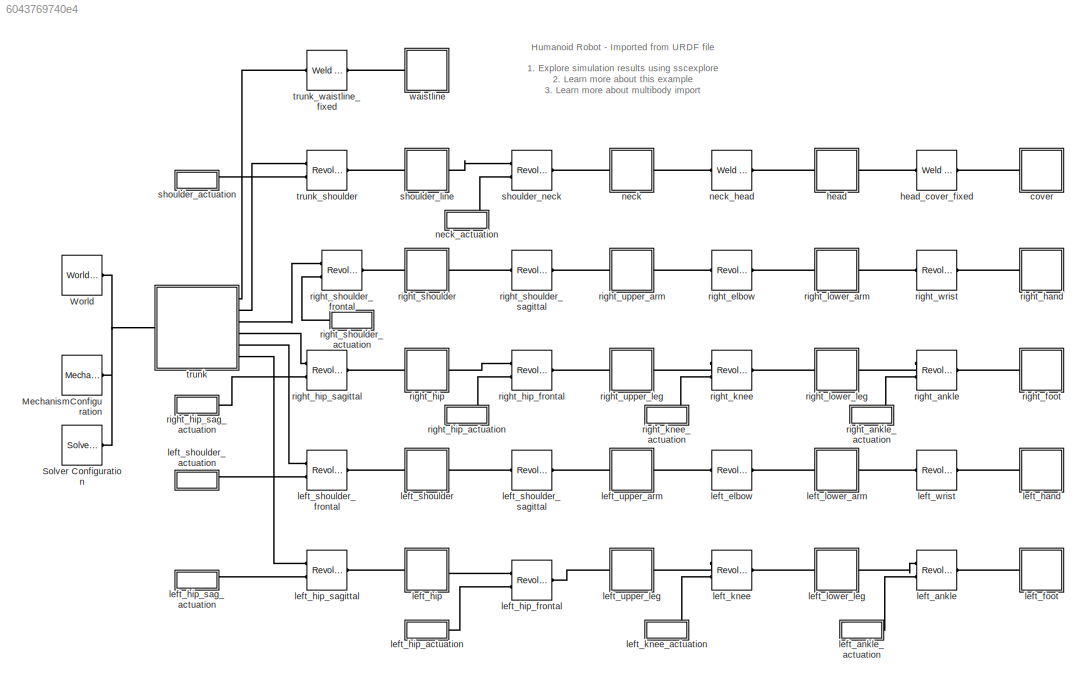
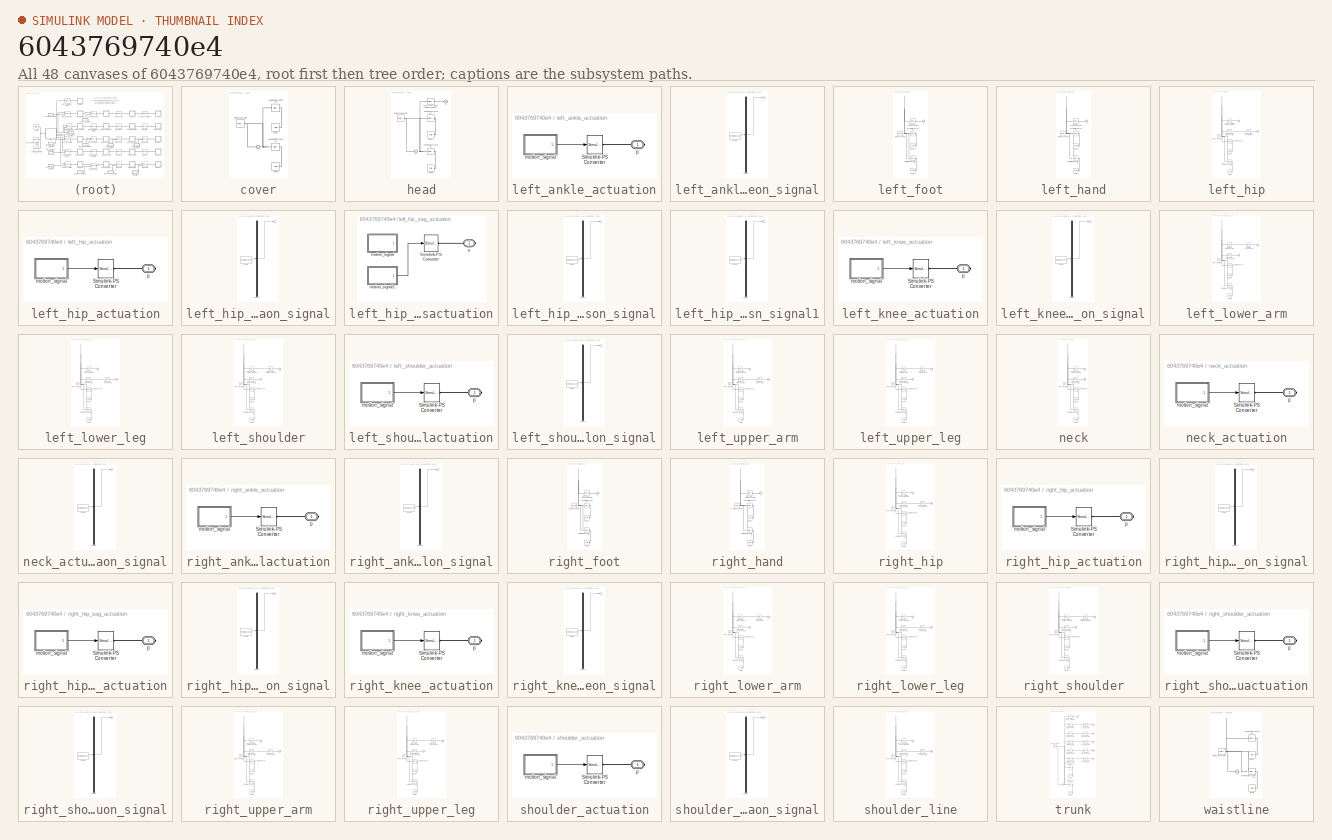
[diagram: thumbnail index - all 48 canvases of the model, root first then tree order]
MODEL slx_6043769740e4
KIND model
CONFIG AbsTol = auto
CONFIG EnableMultiTasking = off
CONFIG FixedStep = auto
CONFIG MaxStep = auto
CONFIG MinStep = auto
CONFIG RelTol = 1e-3
CONFIG SampleTimeConstraint = Unconstrained
CONFIG Solver = VariableStepAuto
CONFIG SolverName = VariableStepAuto
CONFIG StartTime = 0.0
CONFIG StopTime = 15
BLOCK [Reference] MechanismConfiguration  REF=sm_lib/Utilities/Mechanism
Configuration
  Ports = [0, 0, 0, 0, 0, 0, 1]
  SourceBlock = sm_lib/Utilities/Mechanism\nConfiguration
  SourceProductBaseCode = MS
  SourceProductName = Simscape Multibody
  SourceType = Mechanism\nConfiguration
BLOCK [Reference] Solver Configuration  REF=nesl_utility/Solver
Configuration
  Ports = [0, 0, 0, 0, 0, 0, 1]
  SourceBlock = nesl_utility/Solver\nConfiguration
  SourceProductBaseCode = SS
  SourceProductName = Simscape
  SourceType = Solver\nConfiguration
BLOCK [Reference] World  REF=sm_lib/Frames and
Transforms/World Frame
  Ports = [0, 0, 0, 0, 0, 0, 1]
  SourceBlock = sm_lib/Frames and\nTransforms/World Frame
  SourceProductBaseCode = MS
  SourceProductName = Simscape Multibody
  SourceType = World Frame
BLOCK [SubSystem] cover
  Ports = [0, 0, 0, 0, 0, 1]
  RequestExecContextInheritance = off
  Variant = off
BLOCK [PMIOPort] cover/F
  Port = 1
  Side = Left
BLOCK [Reference] cover/Inertia  REF=sm_lib/Body Elements/Solid
  Ports = [0, 0, 0, 0, 0, 0, 1]
  SourceBlock = sm_lib/Body Elements/Solid
  SourceProductBaseCode = MS
  SourceProductName = Simscape Multibody
  SourceType = Solid
BLOCK [Reference] cover/InertiaOriginTransform  REF=sm_lib/Frames and
Transforms/Rigid
Transform
  Ports = [0, 0, 0, 0, 0, 1, 1]
  SourceBlock = sm_lib/Frames and\nTransforms/Rigid\nTransform
  SourceProductBaseCode = MS
  SourceProductName = Simscape Multibody
  SourceType = Rigid\nTransform
BLOCK [Reference] cover/ReferenceFrame  REF=sm_lib/Frames and
Transforms/Reference
Frame
  Ports = [0, 0, 0, 0, 0, 0, 1]
  SourceBlock = sm_lib/Frames and\nTransforms/Reference\nFrame
  SourceProductBaseCode = MS
  SourceProductName = Simscape Multibody
  SourceType = Reference\nFrame
BLOCK [Reference] cover/Visual  REF=sm_lib/Body Elements/Solid
  Ports = [0, 0, 0, 0, 0, 0, 1]
  SourceBlock = sm_lib/Body Elements/Solid
  SourceProductBaseCode = MS
  SourceProductName = Simscape Multibody
  SourceType = Solid
BLOCK [Reference] cover/VisualOriginTransform  REF=sm_lib/Frames and
Transforms/Rigid
Transform
  Ports = [0, 0, 0, 0, 0, 1, 1]
  SourceBlock = sm_lib/Frames and\nTransforms/Rigid\nTransform
  SourceProductBaseCode = MS
  SourceProductName = Simscape Multibody
  SourceType = Rigid\nTransform
BLOCK [SubSystem] head
  Ports = [0, 0, 0, 0, 0, 1, 1]
  RequestExecContextInheritance = off
  Variant = off
BLOCK [PMIOPort] head/F
  Port = 1
  Side = Left
BLOCK [PMIOPort] head/F1
  Port = 2
  Side = Right
BLOCK [Reference] head/Inertia  REF=sm_lib/Body Elements/Solid
  Ports = [0, 0, 0, 0, 0, 0, 1]
  SourceBlock = sm_lib/Body Elements/Solid
  SourceProductBaseCode = MS
  SourceProductName = Simscape Multibody
  SourceType = Solid
BLOCK [Reference] head/InertiaOriginTransform  REF=sm_lib/Frames and
Transforms/Rigid
Transform
  Ports = [0, 0, 0, 0, 0, 1, 1]
  SourceBlock = sm_lib/Frames and\nTransforms/Rigid\nTransform
  SourceProductBaseCode = MS
  SourceProductName = Simscape Multibody
  SourceType = Rigid\nTransform
BLOCK [Reference] head/ReferenceFrame  REF=sm_lib/Frames and
Transforms/Reference
Frame
  Ports = [0, 0, 0, 0, 0, 0, 1]
  SourceBlock = sm_lib/Frames and\nTransforms/Reference\nFrame
  SourceProductBaseCode = MS
  SourceProductName = Simscape Multibody
  SourceType = Reference\nFrame
BLOCK [Reference] head/Visual  REF=sm_lib/Body Elements/Solid
  Ports = [0, 0, 0, 0, 0, 0, 1]
  SourceBlock = sm_lib/Body Elements/Solid
  SourceProductBaseCode = MS
  SourceProductName = Simscape Multibody
  SourceType = Solid
BLOCK [Reference] head/VisualOriginTransform  REF=sm_lib/Frames and
Transforms/Rigid
Transform
  Ports = [0, 0, 0, 0, 0, 1, 1]
  SourceBlock = sm_lib/Frames and\nTransforms/Rigid\nTransform
  SourceProductBaseCode = MS
  SourceProductName = Simscape Multibody
  SourceType = Rigid\nTransform
BLOCK [Reference] head/head_cover_fixed_OriginTransform  REF=sm_lib/Frames and
Transforms/Rigid
Transform
  Ports = [0, 0, 0, 0, 0, 1, 1]
  SourceBlock = sm_lib/Frames and\nTransforms/Rigid\nTransform
  SourceProductBaseCode = MS
  SourceProductName = Simscape Multibody
  SourceType = Rigid\nTransform
BLOCK [Reference] head_cover_fixed  REF=sm_lib/Joints/Weld Joint
  Ports = [0, 0, 0, 0, 0, 1, 1]
  SourceBlock = sm_lib/Joints/Weld Joint
  SourceProductBaseCode = MS
  SourceProductName = Simscape Multibody
  SourceType = Weld Joint
BLOCK [Reference] left_ankle  REF=sm_lib/Joints/Revolute Joint
  Ports = [0, 0, 0, 0, 0, 2, 1]
  SourceBlock = sm_lib/Joints/Revolute Joint
  SourceProductBaseCode = MS
  SourceProductName = Simscape Multibody
  SourceType = Revolute Joint
BLOCK [SubSystem] left_ankle_actuation
  Ports = [0, 0, 0, 0, 0, 0, 1]
  RequestExecContextInheritance = off
  Variant = off
BLOCK [Reference] left_ankle_actuation/Simulink-PS Converter  REF=nesl_utility/Simulink-PS
Converter
  Ports = [1, 0, 0, 0, 0, 0, 1]
  SourceBlock = nesl_utility/Simulink-PS\nConverter
  SourceProductBaseCode = SS
  SourceProductName = Simscape
  SourceType = Simulink-PS\nConverter
BLOCK [SubSystem] left_ankle_actuation/motion_signal
  ClipboardFcn = sigbuilder_block('clipboard');
  CloseFcn = sigbuilder_block('close');
  ContinueFcn = sigbuilder_block('continue');
  CopyFcn = sigbuilder_block('copy');
  DeleteFcn = sigbuilder_block('delete');
  LoadFcn = sigbuilder_block('load');
  MaskHideContents = on
  ModelCloseFcn = sigbuilder_block('modelClose');
  NameChangeFcn = sigbuilder_block('namechange');
  OpenFcn = sigbuilder_block('open',[437.6 199.2 550.4 400 ]);
  PauseFcn = sigbuilder_block('pause');
  Ports = [0, 1]
  PreSaveFcn = sigbuilder_block('preSave');
  RequestExecContextInheritance = off
  StartFcn = sigbuilder_block('start');
  StopFcn = sigbuilder_block('stop');
  Tag = STV Subsys
  Variant = off
BLOCK [Demux] left_ankle_actuation/motion_signal/Demux
  Outputs = 1
  Ports = [1, 1]
  Tag = STV Demux
BLOCK [Outport] left_ankle_actuation/motion_signal/FA
  IconDisplay = Port number
  Tag = STV Outport
BLOCK [FromWorkspace] left_ankle_actuation/motion_signal/FromWs
  SampleTime = 0
  Tag = STV FromWs
  VariableName = tuvar
  ZeroCross = on
BLOCK [PMIOPort] left_ankle_actuation/p
  Port = 1
  Side = Right
BLOCK [Reference] left_elbow  REF=sm_lib/Joints/Revolute Joint
  Ports = [0, 0, 0, 0, 0, 1, 1]
  SourceBlock = sm_lib/Joints/Revolute Joint
  SourceProductBaseCode = MS
  SourceProductName = Simscape Multibody
  SourceType = Revolute Joint
BLOCK [SubSystem] left_foot
  Ports = [0, 0, 0, 0, 0, 1]
  RequestExecContextInheritance = off
  Variant = off
BLOCK [PMIOPort] left_foot/F
  Port = 1
  Side = Left
BLOCK [Reference] left_foot/Inertia  REF=sm_lib/Body Elements/Solid
  Ports = [0, 0, 0, 0, 0, 0, 1]
  SourceBlock = sm_lib/Body Elements/Solid
  SourceProductBaseCode = MS
  SourceProductName = Simscape Multibody
  SourceType = Solid
BLOCK [Reference] left_foot/InertiaOriginTransform  REF=sm_lib/Frames and
Transforms/Rigid
Transform
  Ports = [0, 0, 0, 0, 0, 1, 1]
  SourceBlock = sm_lib/Frames and\nTransforms/Rigid\nTransform
  SourceProductBaseCode = MS
  SourceProductName = Simscape Multibody
  SourceType = Rigid\nTransform
BLOCK [Reference] left_foot/ReferenceFrame  REF=sm_lib/Frames and
Transforms/Reference
Frame
  Ports = [0, 0, 0, 0, 0, 0, 1]
  SourceBlock = sm_lib/Frames and\nTransforms/Reference\nFrame
  SourceProductBaseCode = MS
  SourceProductName = Simscape Multibody
  SourceType = Reference\nFrame
BLOCK [Reference] left_foot/Visual  REF=sm_lib/Body Elements/Solid
  Ports = [0, 0, 0, 0, 0, 0, 1]
  SourceBlock = sm_lib/Body Elements/Solid
  SourceProductBaseCode = MS
  SourceProductName = Simscape Multibody
  SourceType = Solid
BLOCK [Reference] left_foot/VisualOriginTransform  REF=sm_lib/Frames and
Transforms/Rigid
Transform
  Ports = [0, 0, 0, 0, 0, 1, 1]
  SourceBlock = sm_lib/Frames and\nTransforms/Rigid\nTransform
  SourceProductBaseCode = MS
  SourceProductName = Simscape Multibody
  SourceType = Rigid\nTransform
BLOCK [Reference] left_foot/left_ankle_AxisInvTransform  REF=sm_lib/Frames and
Transforms/Rigid
Transform
  Ports = [0, 0, 0, 0, 0, 1, 1]
  SourceBlock = sm_lib/Frames and\nTransforms/Rigid\nTransform
  SourceProductBaseCode = MS
  SourceProductName = Simscape Multibody
  SourceType = Rigid\nTransform
BLOCK [SubSystem] left_hand
  Ports = [0, 0, 0, 0, 0, 1]
  RequestExecContextInheritance = off
  Variant = off
BLOCK [PMIOPort] left_hand/F
  Port = 1
  Side = Left
BLOCK [Reference] left_hand/Inertia  REF=sm_lib/Body Elements/Solid
  Ports = [0, 0, 0, 0, 0, 0, 1]
  SourceBlock = sm_lib/Body Elements/Solid
  SourceProductBaseCode = MS
  SourceProductName = Simscape Multibody
  SourceType = Solid
BLOCK [Reference] left_hand/InertiaOriginTransform  REF=sm_lib/Frames and
Transforms/Rigid
Transform
  Ports = [0, 0, 0, 0, 0, 1, 1]
  SourceBlock = sm_lib/Frames and\nTransforms/Rigid\nTransform
  SourceProductBaseCode = MS
  SourceProductName = Simscape Multibody
  SourceType = Rigid\nTransform
BLOCK [Reference] left_hand/ReferenceFrame  REF=sm_lib/Frames and
Transforms/Reference
Frame
  Ports = [0, 0, 0, 0, 0, 0, 1]
  SourceBlock = sm_lib/Frames and\nTransforms/Reference\nFrame
  SourceProductBaseCode = MS
  SourceProductName = Simscape Multibody
  SourceType = Reference\nFrame
BLOCK [Reference] left_hand/Visual  REF=sm_lib/Body Elements/Solid
  Ports = [0, 0, 0, 0, 0, 0, 1]
  SourceBlock = sm_lib/Body Elements/Solid
  SourceProductBaseCode = MS
  SourceProductName = Simscape Multibody
  SourceType = Solid
BLOCK [Reference] left_hand/VisualOriginTransform  REF=sm_lib/Frames and
Transforms/Rigid
Transform
  Ports = [0, 0, 0, 0, 0, 1, 1]
  SourceBlock = sm_lib/Frames and\nTransforms/Rigid\nTransform
  SourceProductBaseCode = MS
  SourceProductName = Simscape Multibody
  SourceType = Rigid\nTransform
BLOCK [Reference] left_hand/left_wrist_AxisInvTransform  REF=sm_lib/Frames and
Transforms/Rigid
Transform
  Ports = [0, 0, 0, 0, 0, 1, 1]
  SourceBlock = sm_lib/Frames and\nTransforms/Rigid\nTransform
  SourceProductBaseCode = MS
  SourceProductName = Simscape Multibody
  SourceType = Rigid\nTransform
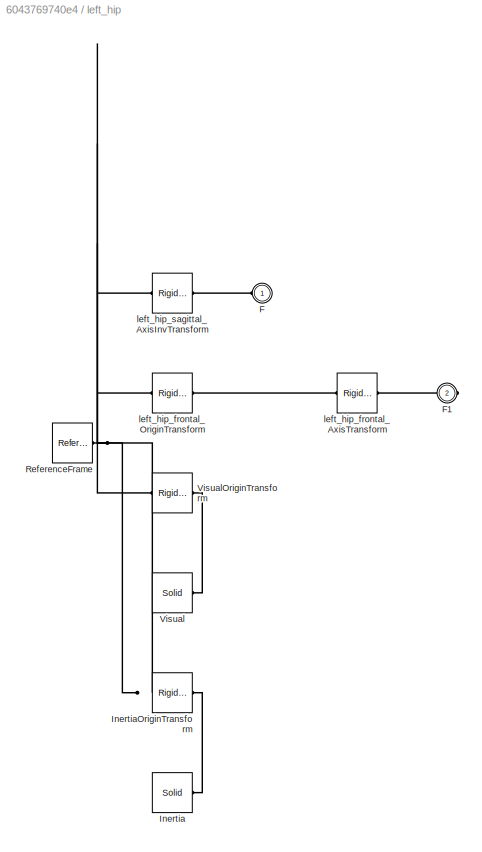
BLOCK [SubSystem] left_hip
  Ports = [0, 0, 0, 0, 0, 1, 1]
  RequestExecContextInheritance = off
  Variant = off
BLOCK [PMIOPort] left_hip/F
  Port = 1
  Side = Left
BLOCK [PMIOPort] left_hip/F1
  Port = 2
  Side = Right
BLOCK [Reference] left_hip/Inertia  REF=sm_lib/Body Elements/Solid
  Ports = [0, 0, 0, 0, 0, 0, 1]
  SourceBlock = sm_lib/Body Elements/Solid
  SourceProductBaseCode = MS
  SourceProductName = Simscape Multibody
  SourceType = Solid
BLOCK [Reference] left_hip/InertiaOriginTransform  REF=sm_lib/Frames and
Transforms/Rigid
Transform
  Ports = [0, 0, 0, 0, 0, 1, 1]
  SourceBlock = sm_lib/Frames and\nTransforms/Rigid\nTransform
  SourceProductBaseCode = MS
  SourceProductName = Simscape Multibody
  SourceType = Rigid\nTransform
BLOCK [Reference] left_hip/ReferenceFrame  REF=sm_lib/Frames and
Transforms/Reference
Frame
  Ports = [0, 0, 0, 0, 0, 0, 1]
  SourceBlock = sm_lib/Frames and\nTransforms/Reference\nFrame
  SourceProductBaseCode = MS
  SourceProductName = Simscape Multibody
  SourceType = Reference\nFrame
BLOCK [Reference] left_hip/Visual  REF=sm_lib/Body Elements/Solid
  Ports = [0, 0, 0, 0, 0, 0, 1]
  SourceBlock = sm_lib/Body Elements/Solid
  SourceProductBaseCode = MS
  SourceProductName = Simscape Multibody
  SourceType = Solid
BLOCK [Reference] left_hip/VisualOriginTransform  REF=sm_lib/Frames and
Transforms/Rigid
Transform
  Ports = [0, 0, 0, 0, 0, 1, 1]
  SourceBlock = sm_lib/Frames and\nTransforms/Rigid\nTransform
  SourceProductBaseCode = MS
  SourceProductName = Simscape Multibody
  SourceType = Rigid\nTransform
BLOCK [Reference] left_hip/left_hip_frontal_AxisTransform  REF=sm_lib/Frames and
Transforms/Rigid
Transform
  Ports = [0, 0, 0, 0, 0, 1, 1]
  SourceBlock = sm_lib/Frames and\nTransforms/Rigid\nTransform
  SourceProductBaseCode = MS
  SourceProductName = Simscape Multibody
  SourceType = Rigid\nTransform
BLOCK [Reference] left_hip/left_hip_frontal_OriginTransform  REF=sm_lib/Frames and
Transforms/Rigid
Transform
  Ports = [0, 0, 0, 0, 0, 1, 1]
  SourceBlock = sm_lib/Frames and\nTransforms/Rigid\nTransform
  SourceProductBaseCode = MS
  SourceProductName = Simscape Multibody
  SourceType = Rigid\nTransform
BLOCK [Reference] left_hip/left_hip_sagittal_AxisInvTransform  REF=sm_lib/Frames and
Transforms/Rigid
Transform
  Ports = [0, 0, 0, 0, 0, 1, 1]
  SourceBlock = sm_lib/Frames and\nTransforms/Rigid\nTransform
  SourceProductBaseCode = MS
  SourceProductName = Simscape Multibody
  SourceType = Rigid\nTransform
BLOCK [SubSystem] left_hip_actuation
  Ports = [0, 0, 0, 0, 0, 0, 1]
  RequestExecContextInheritance = off
  Variant = off
BLOCK [Reference] left_hip_actuation/Simulink-PS Converter  REF=nesl_utility/Simulink-PS
Converter
  Ports = [1, 0, 0, 0, 0, 0, 1]
  SourceBlock = nesl_utility/Simulink-PS\nConverter
  SourceProductBaseCode = SS
  SourceProductName = Simscape
  SourceType = Simulink-PS\nConverter
BLOCK [SubSystem] left_hip_actuation/motion_signal
  ClipboardFcn = sigbuilder_block('clipboard');
  CloseFcn = sigbuilder_block('close');
  ContinueFcn = sigbuilder_block('continue');
  CopyFcn = sigbuilder_block('copy');
  DeleteFcn = sigbuilder_block('delete');
  LoadFcn = sigbuilder_block('load');
  MaskHideContents = on
  ModelCloseFcn = sigbuilder_block('modelClose');
  NameChangeFcn = sigbuilder_block('namechange');
  OpenFcn = sigbuilder_block('open',[429.75 150 565.5 444.75 ]);
  PauseFcn = sigbuilder_block('pause');
  Ports = [0, 1]
  PreSaveFcn = sigbuilder_block('preSave');
  RequestExecContextInheritance = off
  StartFcn = sigbuilder_block('start');
  StopFcn = sigbuilder_block('stop');
  Tag = STV Subsys
  Variant = off
BLOCK [Demux] left_hip_actuation/motion_signal/Demux
  Outputs = 1
  Ports = [1, 1]
  Tag = STV Demux
BLOCK [Outport] left_hip_actuation/motion_signal/FA
  IconDisplay = Port number
  Tag = STV Outport
BLOCK [FromWorkspace] left_hip_actuation/motion_signal/FromWs
  SampleTime = 0
  Tag = STV FromWs
  VariableName = tuvar
  ZeroCross = on
BLOCK [PMIOPort] left_hip_actuation/p
  Port = 1
  Side = Right
BLOCK [Reference] left_hip_frontal  REF=sm_lib/Joints/Revolute Joint
  Ports = [0, 0, 0, 0, 0, 2, 1]
  SourceBlock = sm_lib/Joints/Revolute Joint
  SourceProductBaseCode = MS
  SourceProductName = Simscape Multibody
  SourceType = Revolute Joint
BLOCK [SubSystem] left_hip_sag_actuation
  Ports = [0, 0, 0, 0, 0, 0, 1]
  RequestExecContextInheritance = off
  Variant = off
BLOCK [Reference] left_hip_sag_actuation/Simulink-PS Converter  REF=nesl_utility/Simulink-PS
Converter
  Ports = [1, 0, 0, 0, 0, 0, 1]
  SourceBlock = nesl_utility/Simulink-PS\nConverter
  SourceProductBaseCode = SS
  SourceProductName = Simscape
  SourceType = Simulink-PS\nConverter
BLOCK [SubSystem] left_hip_sag_actuation/motion_signal
  ClipboardFcn = sigbuilder_block('clipboard');
  CloseFcn = sigbuilder_block('close');
  ContinueFcn = sigbuilder_block('continue');
  CopyFcn = sigbuilder_block('copy');
  DeleteFcn = sigbuilder_block('delete');
  LoadFcn = sigbuilder_block('load');
  MaskHideContents = on
  ModelCloseFcn = sigbuilder_block('modelClose');
  NameChangeFcn = sigbuilder_block('namechange');
  OpenFcn = sigbuilder_block('open',[429.75 129 565.5 444.75 ]);
  PauseFcn = sigbuilder_block('pause');
  Ports = [0, 1]
  PreSaveFcn = sigbuilder_block('preSave');
  RequestExecContextInheritance = off
  StartFcn = sigbuilder_block('start');
  StopFcn = sigbuilder_block('stop');
  Tag = STV Subsys
  Variant = off
BLOCK [Demux] left_hip_sag_actuation/motion_signal/Demux
  Outputs = 1
  Ports = [1, 1]
  Tag = STV Demux
BLOCK [Outport] left_hip_sag_actuation/motion_signal/FA
  IconDisplay = Port number
  Tag = STV Outport
BLOCK [FromWorkspace] left_hip_sag_actuation/motion_signal/FromWs
  SampleTime = 0
  Tag = STV FromWs
  VariableName = tuvar
  ZeroCross = on
BLOCK [SubSystem] left_hip_sag_actuation/motion_signal1
  ClipboardFcn = sigbuilder_block('clipboard');
  CloseFcn = sigbuilder_block('close');
  ContinueFcn = sigbuilder_block('continue');
  CopyFcn = sigbuilder_block('copy');
  DeleteFcn = sigbuilder_block('delete');
  LoadFcn = sigbuilder_block('load',[429.75 151.5 558 422.25 ]);
  MaskHideContents = on
  ModelCloseFcn = sigbuilder_block('modelClose');
  NameChangeFcn = sigbuilder_block('namechange');
  OpenFcn = sigbuilder_block('open',[429.75 150 565.5 444.75 ]);
  PauseFcn = sigbuilder_block('pause');
  Ports = [0, 1]
  PreSaveFcn = sigbuilder_block('preSave');
  RequestExecContextInheritance = off
  StartFcn = sigbuilder_block('start');
  StopFcn = sigbuilder_block('stop');
  Tag = STV Subsys
  Variant = off
BLOCK [Demux] left_hip_sag_actuation/motion_signal1/Demux
  Outputs = 1
  Ports = [1, 1]
  Tag = STV Demux
BLOCK [Outport] left_hip_sag_actuation/motion_signal1/FA
  IconDisplay = Port number
  Tag = STV Outport
BLOCK [FromWorkspace] left_hip_sag_actuation/motion_signal1/FromWs
  SampleTime = 0
  Tag = STV FromWs
  VariableName = tuvar
  ZeroCross = on
BLOCK [PMIOPort] left_hip_sag_actuation/p
  Port = 1
  Side = Right
BLOCK [Reference] left_hip_sagittal  REF=sm_lib/Joints/Revolute Joint
  Ports = [0, 0, 0, 0, 0, 2, 1]
  SourceBlock = sm_lib/Joints/Revolute Joint
  SourceProductBaseCode = MS
  SourceProductName = Simscape Multibody
  SourceType = Revolute Joint
BLOCK [Reference] left_knee  REF=sm_lib/Joints/Revolute Joint
  Ports = [0, 0, 0, 0, 0, 2, 1]
  SourceBlock = sm_lib/Joints/Revolute Joint
  SourceProductBaseCode = MS
  SourceProductName = Simscape Multibody
  SourceType = Revolute Joint
BLOCK [SubSystem] left_knee_actuation
  Ports = [0, 0, 0, 0, 0, 0, 1]
  RequestExecContextInheritance = off
  Variant = off
BLOCK [Reference] left_knee_actuation/Simulink-PS Converter  REF=nesl_utility/Simulink-PS
Converter
  Ports = [1, 0, 0, 0, 0, 0, 1]
  SourceBlock = nesl_utility/Simulink-PS\nConverter
  SourceProductBaseCode = SS
  SourceProductName = Simscape
  SourceType = Simulink-PS\nConverter
BLOCK [SubSystem] left_knee_actuation/motion_signal
  ClipboardFcn = sigbuilder_block('clipboard');
  CloseFcn = sigbuilder_block('close');
  ContinueFcn = sigbuilder_block('continue');
  CopyFcn = sigbuilder_block('copy');
  DeleteFcn = sigbuilder_block('delete');
  LoadFcn = sigbuilder_block('load');
  MaskHideContents = on
  ModelCloseFcn = sigbuilder_block('modelClose');
  NameChangeFcn = sigbuilder_block('namechange');
  OpenFcn = sigbuilder_block('open',[437.6 199.2 550.4 400 ]);
  PauseFcn = sigbuilder_block('pause');
  Ports = [0, 1]
  PreSaveFcn = sigbuilder_block('preSave');
  RequestExecContextInheritance = off
  StartFcn = sigbuilder_block('start');
  StopFcn = sigbuilder_block('stop');
  Tag = STV Subsys
  Variant = off
BLOCK [Demux] left_knee_actuation/motion_signal/Demux
  Outputs = 1
  Ports = [1, 1]
  Tag = STV Demux
BLOCK [Outport] left_knee_actuation/motion_signal/FA
  IconDisplay = Port number
  Tag = STV Outport
BLOCK [FromWorkspace] left_knee_actuation/motion_signal/FromWs
  SampleTime = 0
  Tag = STV FromWs
  VariableName = tuvar
  ZeroCross = on
BLOCK [PMIOPort] left_knee_actuation/p
  Port = 1
  Side = Right
BLOCK [SubSystem] left_lower_arm
  Ports = [0, 0, 0, 0, 0, 1, 1]
  RequestExecContextInheritance = off
  Variant = off
BLOCK [PMIOPort] left_lower_arm/F
  Port = 1
  Side = Left
BLOCK [PMIOPort] left_lower_arm/F1
  Port = 2
  Side = Right
BLOCK [Reference] left_lower_arm/Inertia  REF=sm_lib/Body Elements/Solid
  Ports = [0, 0, 0, 0, 0, 0, 1]
  SourceBlock = sm_lib/Body Elements/Solid
  SourceProductBaseCode = MS
  SourceProductName = Simscape Multibody
  SourceType = Solid
BLOCK [Reference] left_lower_arm/InertiaOriginTransform  REF=sm_lib/Frames and
Transforms/Rigid
Transform
  Ports = [0, 0, 0, 0, 0, 1, 1]
  SourceBlock = sm_lib/Frames and\nTransforms/Rigid\nTransform
  SourceProductBaseCode = MS
  SourceProductName = Simscape Multibody
  SourceType = Rigid\nTransform
BLOCK [Reference] left_lower_arm/ReferenceFrame  REF=sm_lib/Frames and
Transforms/Reference
Frame
  Ports = [0, 0, 0, 0, 0, 0, 1]
  SourceBlock = sm_lib/Frames and\nTransforms/Reference\nFrame
  SourceProductBaseCode = MS
  SourceProductName = Simscape Multibody
  SourceType = Reference\nFrame
BLOCK [Reference] left_lower_arm/Visual  REF=sm_lib/Body Elements/Solid
  Ports = [0, 0, 0, 0, 0, 0, 1]
  SourceBlock = sm_lib/Body Elements/Solid
  SourceProductBaseCode = MS
  SourceProductName = Simscape Multibody
  SourceType = Solid
BLOCK [Reference] left_lower_arm/VisualOriginTransform  REF=sm_lib/Frames and
Transforms/Rigid
Transform
  Ports = [0, 0, 0, 0, 0, 1, 1]
  SourceBlock = sm_lib/Frames and\nTransforms/Rigid\nTransform
  SourceProductBaseCode = MS
  SourceProductName = Simscape Multibody
  SourceType = Rigid\nTransform
BLOCK [Reference] left_lower_arm/left_elbow_AxisInvTransform  REF=sm_lib/Frames and
Transforms/Rigid
Transform
  Ports = [0, 0, 0, 0, 0, 1, 1]
  SourceBlock = sm_lib/Frames and\nTransforms/Rigid\nTransform
  SourceProductBaseCode = MS
  SourceProductName = Simscape Multibody
  SourceType = Rigid\nTransform
BLOCK [Reference] left_lower_arm/left_wrist_AxisTransform  REF=sm_lib/Frames and
Transforms/Rigid
Transform
  Ports = [0, 0, 0, 0, 0, 1, 1]
  SourceBlock = sm_lib/Frames and\nTransforms/Rigid\nTransform
  SourceProductBaseCode = MS
  SourceProductName = Simscape Multibody
  SourceType = Rigid\nTransform
BLOCK [Reference] left_lower_arm/left_wrist_OriginTransform  REF=sm_lib/Frames and
Transforms/Rigid
Transform
  Ports = [0, 0, 0, 0, 0, 1, 1]
  SourceBlock = sm_lib/Frames and\nTransforms/Rigid\nTransform
  SourceProductBaseCode = MS
  SourceProductName = Simscape Multibody
  SourceType = Rigid\nTransform
BLOCK [SubSystem] left_lower_leg
  Ports = [0, 0, 0, 0, 0, 1, 1]
  RequestExecContextInheritance = off
  Variant = off
BLOCK [PMIOPort] left_lower_leg/F
  Port = 1
  Side = Left
BLOCK [PMIOPort] left_lower_leg/F1
  Port = 2
  Side = Right
BLOCK [Reference] left_lower_leg/Inertia  REF=sm_lib/Body Elements/Solid
  Ports = [0, 0, 0, 0, 0, 0, 1]
  SourceBlock = sm_lib/Body Elements/Solid
  SourceProductBaseCode = MS
  SourceProductName = Simscape Multibody
  SourceType = Solid
BLOCK [Reference] left_lower_leg/InertiaOriginTransform  REF=sm_lib/Frames and
Transforms/Rigid
Transform
  Ports = [0, 0, 0, 0, 0, 1, 1]
  SourceBlock = sm_lib/Frames and\nTransforms/Rigid\nTransform
  SourceProductBaseCode = MS
  SourceProductName = Simscape Multibody
  SourceType = Rigid\nTransform
BLOCK [Reference] left_lower_leg/ReferenceFrame  REF=sm_lib/Frames and
Transforms/Reference
Frame
  Ports = [0, 0, 0, 0, 0, 0, 1]
  SourceBlock = sm_lib/Frames and\nTransforms/Reference\nFrame
  SourceProductBaseCode = MS
  SourceProductName = Simscape Multibody
  SourceType = Reference\nFrame
BLOCK [Reference] left_lower_leg/Visual  REF=sm_lib/Body Elements/Solid
  Ports = [0, 0, 0, 0, 0, 0, 1]
  SourceBlock = sm_lib/Body Elements/Solid
  SourceProductBaseCode = MS
  SourceProductName = Simscape Multibody
  SourceType = Solid
BLOCK [Reference] left_lower_leg/VisualOriginTransform  REF=sm_lib/Frames and
Transforms/Rigid
Transform
  Ports = [0, 0, 0, 0, 0, 1, 1]
  SourceBlock = sm_lib/Frames and\nTransforms/Rigid\nTransform
  SourceProductBaseCode = MS
  SourceProductName = Simscape Multibody
  SourceType = Rigid\nTransform
BLOCK [Reference] left_lower_leg/left_ankle_AxisTransform  REF=sm_lib/Frames and
Transforms/Rigid
Transform
  Ports = [0, 0, 0, 0, 0, 1, 1]
  SourceBlock = sm_lib/Frames and\nTransforms/Rigid\nTransform
  SourceProductBaseCode = MS
  SourceProductName = Simscape Multibody
  SourceType = Rigid\nTransform
BLOCK [Reference] left_lower_leg/left_ankle_OriginTransform  REF=sm_lib/Frames and
Transforms/Rigid
Transform
  Ports = [0, 0, 0, 0, 0, 1, 1]
  SourceBlock = sm_lib/Frames and\nTransforms/Rigid\nTransform
  SourceProductBaseCode = MS
  SourceProductName = Simscape Multibody
  SourceType = Rigid\nTransform
BLOCK [Reference] left_lower_leg/left_knee_AxisInvTransform  REF=sm_lib/Frames and
Transforms/Rigid
Transform
  Ports = [0, 0, 0, 0, 0, 1, 1]
  SourceBlock = sm_lib/Frames and\nTransforms/Rigid\nTransform
  SourceProductBaseCode = MS
  SourceProductName = Simscape Multibody
  SourceType = Rigid\nTransform
BLOCK [SubSystem] left_shoulder
  Ports = [0, 0, 0, 0, 0, 1, 1]
  RequestExecContextInheritance = off
  Variant = off
BLOCK [PMIOPort] left_shoulder/F
  Port = 1
  Side = Left
BLOCK [PMIOPort] left_shoulder/F1
  Port = 2
  Side = Right
BLOCK [Reference] left_shoulder/Inertia  REF=sm_lib/Body Elements/Solid
  Ports = [0, 0, 0, 0, 0, 0, 1]
  SourceBlock = sm_lib/Body Elements/Solid
  SourceProductBaseCode = MS
  SourceProductName = Simscape Multibody
  SourceType = Solid
BLOCK [Reference] left_shoulder/InertiaOriginTransform  REF=sm_lib/Frames and
Transforms/Rigid
Transform
  Ports = [0, 0, 0, 0, 0, 1, 1]
  SourceBlock = sm_lib/Frames and\nTransforms/Rigid\nTransform
  SourceProductBaseCode = MS
  SourceProductName = Simscape Multibody
  SourceType = Rigid\nTransform
BLOCK [Reference] left_shoulder/ReferenceFrame  REF=sm_lib/Frames and
Transforms/Reference
Frame
  Ports = [0, 0, 0, 0, 0, 0, 1]
  SourceBlock = sm_lib/Frames and\nTransforms/Reference\nFrame
  SourceProductBaseCode = MS
  SourceProductName = Simscape Multibody
  SourceType = Reference\nFrame
BLOCK [Reference] left_shoulder/Visual  REF=sm_lib/Body Elements/Solid
  Ports = [0, 0, 0, 0, 0, 0, 1]
  SourceBlock = sm_lib/Body Elements/Solid
  SourceProductBaseCode = MS
  SourceProductName = Simscape Multibody
  SourceType = Solid
BLOCK [Reference] left_shoulder/VisualOriginTransform  REF=sm_lib/Frames and
Transforms/Rigid
Transform
  Ports = [0, 0, 0, 0, 0, 1, 1]
  SourceBlock = sm_lib/Frames and\nTransforms/Rigid\nTransform
  SourceProductBaseCode = MS
  SourceProductName = Simscape Multibody
  SourceType = Rigid\nTransform
BLOCK [Reference] left_shoulder/left_shoulder_frontal_AxisInvTransform  REF=sm_lib/Frames and
Transforms/Rigid
Transform
  Ports = [0, 0, 0, 0, 0, 1, 1]
  SourceBlock = sm_lib/Frames and\nTransforms/Rigid\nTransform
  SourceProductBaseCode = MS
  SourceProductName = Simscape Multibody
  SourceType = Rigid\nTransform
BLOCK [Reference] left_shoulder/left_shoulder_sagittal_AxisTransform  REF=sm_lib/Frames and
Transforms/Rigid
Transform
  Ports = [0, 0, 0, 0, 0, 1, 1]
  SourceBlock = sm_lib/Frames and\nTransforms/Rigid\nTransform
  SourceProductBaseCode = MS
  SourceProductName = Simscape Multibody
  SourceType = Rigid\nTransform
BLOCK [Reference] left_shoulder/left_shoulder_sagittal_OriginTransform  REF=sm_lib/Frames and
Transforms/Rigid
Transform
  Ports = [0, 0, 0, 0, 0, 1, 1]
  SourceBlock = sm_lib/Frames and\nTransforms/Rigid\nTransform
  SourceProductBaseCode = MS
  SourceProductName = Simscape Multibody
  SourceType = Rigid\nTransform
BLOCK [SubSystem] left_shoulder_actuation
  Ports = [0, 0, 0, 0, 0, 0, 1]
  RequestExecContextInheritance = off
  Variant = off
BLOCK [Reference] left_shoulder_actuation/Simulink-PS Converter  REF=nesl_utility/Simulink-PS
Converter
  Ports = [1, 0, 0, 0, 0, 0, 1]
  SourceBlock = nesl_utility/Simulink-PS\nConverter
  SourceProductBaseCode = SS
  SourceProductName = Simscape
  SourceType = Simulink-PS\nConverter
BLOCK [SubSystem] left_shoulder_actuation/motion_signal
  ClipboardFcn = sigbuilder_block('clipboard');
  CloseFcn = sigbuilder_block('close');
  ContinueFcn = sigbuilder_block('continue');
  CopyFcn = sigbuilder_block('copy');
  DeleteFcn = sigbuilder_block('delete');
  LoadFcn = sigbuilder_block('load');
  MaskHideContents = on
  ModelCloseFcn = sigbuilder_block('modelClose');
  NameChangeFcn = sigbuilder_block('namechange');
  OpenFcn = sigbuilder_block('open',[437.6 199.2 550.4 400 ]);
  PauseFcn = sigbuilder_block('pause');
  Ports = [0, 1]
  PreSaveFcn = sigbuilder_block('preSave');
  RequestExecContextInheritance = off
  StartFcn = sigbuilder_block('start');
  StopFcn = sigbuilder_block('stop');
  Tag = STV Subsys
  Variant = off
BLOCK [Demux] left_shoulder_actuation/motion_signal/Demux
  Outputs = 1
  Ports = [1, 1]
  Tag = STV Demux
BLOCK [Outport] left_shoulder_actuation/motion_signal/FA
  IconDisplay = Port number
  Tag = STV Outport
BLOCK [FromWorkspace] left_shoulder_actuation/motion_signal/FromWs
  SampleTime = 0
  Tag = STV FromWs
  VariableName = tuvar
  ZeroCross = on
BLOCK [PMIOPort] left_shoulder_actuation/p
  Port = 1
  Side = Right
BLOCK [Reference] left_shoulder_frontal  REF=sm_lib/Joints/Revolute Joint
  Ports = [0, 0, 0, 0, 0, 2, 1]
  SourceBlock = sm_lib/Joints/Revolute Joint
  SourceProductBaseCode = MS
  SourceProductName = Simscape Multibody
  SourceType = Revolute Joint
BLOCK [Reference] left_shoulder_sagittal  REF=sm_lib/Joints/Revolute Joint
  Ports = [0, 0, 0, 0, 0, 1, 1]
  SourceBlock = sm_lib/Joints/Revolute Joint
  SourceProductBaseCode = MS
  SourceProductName = Simscape Multibody
  SourceType = Revolute Joint
BLOCK [SubSystem] left_upper_arm
  Ports = [0, 0, 0, 0, 0, 1, 1]
  RequestExecContextInheritance = off
  Variant = off
BLOCK [PMIOPort] left_upper_arm/F
  Port = 1
  Side = Left
BLOCK [PMIOPort] left_upper_arm/F1
  Port = 2
  Side = Right
BLOCK [Reference] left_upper_arm/Inertia  REF=sm_lib/Body Elements/Solid
  Ports = [0, 0, 0, 0, 0, 0, 1]
  SourceBlock = sm_lib/Body Elements/Solid
  SourceProductBaseCode = MS
  SourceProductName = Simscape Multibody
  SourceType = Solid
BLOCK [Reference] left_upper_arm/InertiaOriginTransform  REF=sm_lib/Frames and
Transforms/Rigid
Transform
  Ports = [0, 0, 0, 0, 0, 1, 1]
  SourceBlock = sm_lib/Frames and\nTransforms/Rigid\nTransform
  SourceProductBaseCode = MS
  SourceProductName = Simscape Multibody
  SourceType = Rigid\nTransform
BLOCK [Reference] left_upper_arm/ReferenceFrame  REF=sm_lib/Frames and
Transforms/Reference
Frame
  Ports = [0, 0, 0, 0, 0, 0, 1]
  SourceBlock = sm_lib/Frames and\nTransforms/Reference\nFrame
  SourceProductBaseCode = MS
  SourceProductName = Simscape Multibody
  SourceType = Reference\nFrame
BLOCK [Reference] left_upper_arm/Visual  REF=sm_lib/Body Elements/Solid
  Ports = [0, 0, 0, 0, 0, 0, 1]
  SourceBlock = sm_lib/Body Elements/Solid
  SourceProductBaseCode = MS
  SourceProductName = Simscape Multibody
  SourceType = Solid
BLOCK [Reference] left_upper_arm/VisualOriginTransform  REF=sm_lib/Frames and
Transforms/Rigid
Transform
  Ports = [0, 0, 0, 0, 0, 1, 1]
  SourceBlock = sm_lib/Frames and\nTransforms/Rigid\nTransform
  SourceProductBaseCode = MS
  SourceProductName = Simscape Multibody
  SourceType = Rigid\nTransform
BLOCK [Reference] left_upper_arm/left_elbow_AxisTransform  REF=sm_lib/Frames and
Transforms/Rigid
Transform
  Ports = [0, 0, 0, 0, 0, 1, 1]
  SourceBlock = sm_lib/Frames and\nTransforms/Rigid\nTransform
  SourceProductBaseCode = MS
  SourceProductName = Simscape Multibody
  SourceType = Rigid\nTransform
BLOCK [Reference] left_upper_arm/left_elbow_OriginTransform  REF=sm_lib/Frames and
Transforms/Rigid
Transform
  Ports = [0, 0, 0, 0, 0, 1, 1]
  SourceBlock = sm_lib/Frames and\nTransforms/Rigid\nTransform
  SourceProductBaseCode = MS
  SourceProductName = Simscape Multibody
  SourceType = Rigid\nTransform
BLOCK [Reference] left_upper_arm/left_shoulder_sagittal_AxisInvTransform  REF=sm_lib/Frames and
Transforms/Rigid
Transform
  Ports = [0, 0, 0, 0, 0, 1, 1]
  SourceBlock = sm_lib/Frames and\nTransforms/Rigid\nTransform
  SourceProductBaseCode = MS
  SourceProductName = Simscape Multibody
  SourceType = Rigid\nTransform
BLOCK [SubSystem] left_upper_leg
  Ports = [0, 0, 0, 0, 0, 1, 1]
  RequestExecContextInheritance = off
  Variant = off
BLOCK [PMIOPort] left_upper_leg/F
  Port = 1
  Side = Left
BLOCK [PMIOPort] left_upper_leg/F1
  Port = 2
  Side = Right
BLOCK [Reference] left_upper_leg/Inertia  REF=sm_lib/Body Elements/Solid
  Ports = [0, 0, 0, 0, 0, 0, 1]
  SourceBlock = sm_lib/Body Elements/Solid
  SourceProductBaseCode = MS
  SourceProductName = Simscape Multibody
  SourceType = Solid
BLOCK [Reference] left_upper_leg/InertiaOriginTransform  REF=sm_lib/Frames and
Transforms/Rigid
Transform
  Ports = [0, 0, 0, 0, 0, 1, 1]
  SourceBlock = sm_lib/Frames and\nTransforms/Rigid\nTransform
  SourceProductBaseCode = MS
  SourceProductName = Simscape Multibody
  SourceType = Rigid\nTransform
BLOCK [Reference] left_upper_leg/ReferenceFrame  REF=sm_lib/Frames and
Transforms/Reference
Frame
  Ports = [0, 0, 0, 0, 0, 0, 1]
  SourceBlock = sm_lib/Frames and\nTransforms/Reference\nFrame
  SourceProductBaseCode = MS
  SourceProductName = Simscape Multibody
  SourceType = Reference\nFrame
BLOCK [Reference] left_upper_leg/Visual  REF=sm_lib/Body Elements/Solid
  Ports = [0, 0, 0, 0, 0, 0, 1]
  SourceBlock = sm_lib/Body Elements/Solid
  SourceProductBaseCode = MS
  SourceProductName = Simscape Multibody
  SourceType = Solid
BLOCK [Reference] left_upper_leg/VisualOriginTransform  REF=sm_lib/Frames and
Transforms/Rigid
Transform
  Ports = [0, 0, 0, 0, 0, 1, 1]
  SourceBlock = sm_lib/Frames and\nTransforms/Rigid\nTransform
  SourceProductBaseCode = MS
  SourceProductName = Simscape Multibody
  SourceType = Rigid\nTransform
BLOCK [Reference] left_upper_leg/left_hip_frontal_AxisInvTransform  REF=sm_lib/Frames and
Transforms/Rigid
Transform
  Ports = [0, 0, 0, 0, 0, 1, 1]
  SourceBlock = sm_lib/Frames and\nTransforms/Rigid\nTransform
  SourceProductBaseCode = MS
  SourceProductName = Simscape Multibody
  SourceType = Rigid\nTransform
BLOCK [Reference] left_upper_leg/left_knee_AxisTransform  REF=sm_lib/Frames and
Transforms/Rigid
Transform
  Ports = [0, 0, 0, 0, 0, 1, 1]
  SourceBlock = sm_lib/Frames and\nTransforms/Rigid\nTransform
  SourceProductBaseCode = MS
  SourceProductName = Simscape Multibody
  SourceType = Rigid\nTransform
BLOCK [Reference] left_upper_leg/left_knee_OriginTransform  REF=sm_lib/Frames and
Transforms/Rigid
Transform
  Ports = [0, 0, 0, 0, 0, 1, 1]
  SourceBlock = sm_lib/Frames and\nTransforms/Rigid\nTransform
  SourceProductBaseCode = MS
  SourceProductName = Simscape Multibody
  SourceType = Rigid\nTransform
BLOCK [Reference] left_wrist  REF=sm_lib/Joints/Revolute Joint
  Ports = [0, 0, 0, 0, 0, 1, 1]
  SourceBlock = sm_lib/Joints/Revolute Joint
  SourceProductBaseCode = MS
  SourceProductName = Simscape Multibody
  SourceType = Revolute Joint
BLOCK [SubSystem] neck
  Ports = [0, 0, 0, 0, 0, 1, 1]
  RequestExecContextInheritance = off
  Variant = off
BLOCK [PMIOPort] neck/F
  Port = 1
  Side = Left
BLOCK [PMIOPort] neck/F1
  Port = 2
  Side = Right
BLOCK [Reference] neck/Inertia  REF=sm_lib/Body Elements/Solid
  Ports = [0, 0, 0, 0, 0, 0, 1]
  SourceBlock = sm_lib/Body Elements/Solid
  SourceProductBaseCode = MS
  SourceProductName = Simscape Multibody
  SourceType = Solid
BLOCK [Reference] neck/InertiaOriginTransform  REF=sm_lib/Frames and
Transforms/Rigid
Transform
  Ports = [0, 0, 0, 0, 0, 1, 1]
  SourceBlock = sm_lib/Frames and\nTransforms/Rigid\nTransform
  SourceProductBaseCode = MS
  SourceProductName = Simscape Multibody
  SourceType = Rigid\nTransform
BLOCK [Reference] neck/ReferenceFrame  REF=sm_lib/Frames and
Transforms/Reference
Frame
  Ports = [0, 0, 0, 0, 0, 0, 1]
  SourceBlock = sm_lib/Frames and\nTransforms/Reference\nFrame
  SourceProductBaseCode = MS
  SourceProductName = Simscape Multibody
  SourceType = Reference\nFrame
BLOCK [Reference] neck/Visual  REF=sm_lib/Body Elements/Solid
  Ports = [0, 0, 0, 0, 0, 0, 1]
  SourceBlock = sm_lib/Body Elements/Solid
  SourceProductBaseCode = MS
  SourceProductName = Simscape Multibody
  SourceType = Solid
BLOCK [Reference] neck/VisualOriginTransform  REF=sm_lib/Frames and
Transforms/Rigid
Transform
  Ports = [0, 0, 0, 0, 0, 1, 1]
  SourceBlock = sm_lib/Frames and\nTransforms/Rigid\nTransform
  SourceProductBaseCode = MS
  SourceProductName = Simscape Multibody
  SourceType = Rigid\nTransform
BLOCK [Reference] neck/neck_head_OriginTransform  REF=sm_lib/Frames and
Transforms/Rigid
Transform
  Ports = [0, 0, 0, 0, 0, 1, 1]
  SourceBlock = sm_lib/Frames and\nTransforms/Rigid\nTransform
  SourceProductBaseCode = MS
  SourceProductName = Simscape Multibody
  SourceType = Rigid\nTransform
BLOCK [Reference] neck/shoulder_neck_AxisInvTransform  REF=sm_lib/Frames and
Transforms/Rigid
Transform
  Ports = [0, 0, 0, 0, 0, 1, 1]
  SourceBlock = sm_lib/Frames and\nTransforms/Rigid\nTransform
  SourceProductBaseCode = MS
  SourceProductName = Simscape Multibody
  SourceType = Rigid\nTransform
BLOCK [SubSystem] neck_actuation
  Ports = [0, 0, 0, 0, 0, 0, 1]
  RequestExecContextInheritance = off
  Variant = off
BLOCK [Reference] neck_actuation/Simulink-PS Converter  REF=nesl_utility/Simulink-PS
Converter
  Ports = [1, 0, 0, 0, 0, 0, 1]
  SourceBlock = nesl_utility/Simulink-PS\nConverter
  SourceProductBaseCode = SS
  SourceProductName = Simscape
  SourceType = Simulink-PS\nConverter
BLOCK [SubSystem] neck_actuation/motion_signal
  ClipboardFcn = sigbuilder_block('clipboard');
  CloseFcn = sigbuilder_block('close');
  ContinueFcn = sigbuilder_block('continue');
  CopyFcn = sigbuilder_block('copy');
  DeleteFcn = sigbuilder_block('delete');
  LoadFcn = sigbuilder_block('load');
  MaskHideContents = on
  ModelCloseFcn = sigbuilder_block('modelClose');
  NameChangeFcn = sigbuilder_block('namechange');
  OpenFcn = sigbuilder_block('open',[437.6 199.2 550.4 400 ]);
  PauseFcn = sigbuilder_block('pause');
  Ports = [0, 1]
  PreSaveFcn = sigbuilder_block('preSave');
  RequestExecContextInheritance = off
  StartFcn = sigbuilder_block('start');
  StopFcn = sigbuilder_block('stop');
  Tag = STV Subsys
  Variant = off
BLOCK [Demux] neck_actuation/motion_signal/Demux
  Outputs = 1
  Ports = [1, 1]
  Tag = STV Demux
BLOCK [Outport] neck_actuation/motion_signal/FA
  IconDisplay = Port number
  Tag = STV Outport
BLOCK [FromWorkspace] neck_actuation/motion_signal/FromWs
  SampleTime = 0
  Tag = STV FromWs
  VariableName = tuvar
  ZeroCross = on
BLOCK [PMIOPort] neck_actuation/p
  Port = 1
  Side = Right
BLOCK [Reference] neck_head  REF=sm_lib/Joints/Weld Joint
  Ports = [0, 0, 0, 0, 0, 1, 1]
  SourceBlock = sm_lib/Joints/Weld Joint
  SourceProductBaseCode = MS
  SourceProductName = Simscape Multibody
  SourceType = Weld Joint
BLOCK [Reference] right_ankle  REF=sm_lib/Joints/Revolute Joint
  Ports = [0, 0, 0, 0, 0, 2, 1]
  SourceBlock = sm_lib/Joints/Revolute Joint
  SourceProductBaseCode = MS
  SourceProductName = Simscape Multibody
  SourceType = Revolute Joint
BLOCK [SubSystem] right_ankle_actuation
  Ports = [0, 0, 0, 0, 0, 0, 1]
  RequestExecContextInheritance = off
  Variant = off
BLOCK [Reference] right_ankle_actuation/Simulink-PS Converter  REF=nesl_utility/Simulink-PS
Converter
  Ports = [1, 0, 0, 0, 0, 0, 1]
  SourceBlock = nesl_utility/Simulink-PS\nConverter
  SourceProductBaseCode = SS
  SourceProductName = Simscape
  SourceType = Simulink-PS\nConverter
BLOCK [SubSystem] right_ankle_actuation/motion_signal
  ClipboardFcn = sigbuilder_block('clipboard');
  CloseFcn = sigbuilder_block('close');
  ContinueFcn = sigbuilder_block('continue');
  CopyFcn = sigbuilder_block('copy');
  DeleteFcn = sigbuilder_block('delete');
  LoadFcn = sigbuilder_block('load');
  MaskHideContents = on
  ModelCloseFcn = sigbuilder_block('modelClose');
  NameChangeFcn = sigbuilder_block('namechange');
  OpenFcn = sigbuilder_block('open',[437.6 199.2 550.4 400 ]);
  PauseFcn = sigbuilder_block('pause');
  Ports = [0, 1]
  PreSaveFcn = sigbuilder_block('preSave');
  RequestExecContextInheritance = off
  StartFcn = sigbuilder_block('start');
  StopFcn = sigbuilder_block('stop');
  Tag = STV Subsys
  Variant = off
BLOCK [Demux] right_ankle_actuation/motion_signal/Demux
  Outputs = 1
  Ports = [1, 1]
  Tag = STV Demux
BLOCK [Outport] right_ankle_actuation/motion_signal/FA
  IconDisplay = Port number
  Tag = STV Outport
BLOCK [FromWorkspace] right_ankle_actuation/motion_signal/FromWs
  SampleTime = 0
  Tag = STV FromWs
  VariableName = tuvar
  ZeroCross = on
BLOCK [PMIOPort] right_ankle_actuation/p
  Port = 1
  Side = Right
BLOCK [Reference] right_elbow  REF=sm_lib/Joints/Revolute Joint
  Ports = [0, 0, 0, 0, 0, 1, 1]
  SourceBlock = sm_lib/Joints/Revolute Joint
  SourceProductBaseCode = MS
  SourceProductName = Simscape Multibody
  SourceType = Revolute Joint
BLOCK [SubSystem] right_foot
  Ports = [0, 0, 0, 0, 0, 1]
  RequestExecContextInheritance = off
  Variant = off
BLOCK [PMIOPort] right_foot/F
  Port = 1
  Side = Left
BLOCK [Reference] right_foot/Inertia  REF=sm_lib/Body Elements/Solid
  Ports = [0, 0, 0, 0, 0, 0, 1]
  SourceBlock = sm_lib/Body Elements/Solid
  SourceProductBaseCode = MS
  SourceProductName = Simscape Multibody
  SourceType = Solid
BLOCK [Reference] right_foot/InertiaOriginTransform  REF=sm_lib/Frames and
Transforms/Rigid
Transform
  Ports = [0, 0, 0, 0, 0, 1, 1]
  SourceBlock = sm_lib/Frames and\nTransforms/Rigid\nTransform
  SourceProductBaseCode = MS
  SourceProductName = Simscape Multibody
  SourceType = Rigid\nTransform
BLOCK [Reference] right_foot/ReferenceFrame  REF=sm_lib/Frames and
Transforms/Reference
Frame
  Ports = [0, 0, 0, 0, 0, 0, 1]
  SourceBlock = sm_lib/Frames and\nTransforms/Reference\nFrame
  SourceProductBaseCode = MS
  SourceProductName = Simscape Multibody
  SourceType = Reference\nFrame
BLOCK [Reference] right_foot/Visual  REF=sm_lib/Body Elements/Solid
  Ports = [0, 0, 0, 0, 0, 0, 1]
  SourceBlock = sm_lib/Body Elements/Solid
  SourceProductBaseCode = MS
  SourceProductName = Simscape Multibody
  SourceType = Solid
BLOCK [Reference] right_foot/VisualOriginTransform  REF=sm_lib/Frames and
Transforms/Rigid
Transform
  Ports = [0, 0, 0, 0, 0, 1, 1]
  SourceBlock = sm_lib/Frames and\nTransforms/Rigid\nTransform
  SourceProductBaseCode = MS
  SourceProductName = Simscape Multibody
  SourceType = Rigid\nTransform
BLOCK [Reference] right_foot/right_ankle_AxisInvTransform  REF=sm_lib/Frames and
Transforms/Rigid
Transform
  Ports = [0, 0, 0, 0, 0, 1, 1]
  SourceBlock = sm_lib/Frames and\nTransforms/Rigid\nTransform
  SourceProductBaseCode = MS
  SourceProductName = Simscape Multibody
  SourceType = Rigid\nTransform
BLOCK [SubSystem] right_hand
  Ports = [0, 0, 0, 0, 0, 1]
  RequestExecContextInheritance = off
  Variant = off
BLOCK [PMIOPort] right_hand/F
  Port = 1
  Side = Left
BLOCK [Reference] right_hand/Inertia  REF=sm_lib/Body Elements/Solid
  Ports = [0, 0, 0, 0, 0, 0, 1]
  SourceBlock = sm_lib/Body Elements/Solid
  SourceProductBaseCode = MS
  SourceProductName = Simscape Multibody
  SourceType = Solid
BLOCK [Reference] right_hand/InertiaOriginTransform  REF=sm_lib/Frames and
Transforms/Rigid
Transform
  Ports = [0, 0, 0, 0, 0, 1, 1]
  SourceBlock = sm_lib/Frames and\nTransforms/Rigid\nTransform
  SourceProductBaseCode = MS
  SourceProductName = Simscape Multibody
  SourceType = Rigid\nTransform
BLOCK [Reference] right_hand/ReferenceFrame  REF=sm_lib/Frames and
Transforms/Reference
Frame
  Ports = [0, 0, 0, 0, 0, 0, 1]
  SourceBlock = sm_lib/Frames and\nTransforms/Reference\nFrame
  SourceProductBaseCode = MS
  SourceProductName = Simscape Multibody
  SourceType = Reference\nFrame
BLOCK [Reference] right_hand/Visual  REF=sm_lib/Body Elements/Solid
  Ports = [0, 0, 0, 0, 0, 0, 1]
  SourceBlock = sm_lib/Body Elements/Solid
  SourceProductBaseCode = MS
  SourceProductName = Simscape Multibody
  SourceType = Solid
BLOCK [Reference] right_hand/VisualOriginTransform  REF=sm_lib/Frames and
Transforms/Rigid
Transform
  Ports = [0, 0, 0, 0, 0, 1, 1]
  SourceBlock = sm_lib/Frames and\nTransforms/Rigid\nTransform
  SourceProductBaseCode = MS
  SourceProductName = Simscape Multibody
  SourceType = Rigid\nTransform
BLOCK [Reference] right_hand/right_wrist_AxisInvTransform  REF=sm_lib/Frames and
Transforms/Rigid
Transform
  Ports = [0, 0, 0, 0, 0, 1, 1]
  SourceBlock = sm_lib/Frames and\nTransforms/Rigid\nTransform
  SourceProductBaseCode = MS
  SourceProductName = Simscape Multibody
  SourceType = Rigid\nTransform
BLOCK [SubSystem] right_hip
  Ports = [0, 0, 0, 0, 0, 1, 1]
  RequestExecContextInheritance = off
  Variant = off
BLOCK [PMIOPort] right_hip/F
  Port = 1
  Side = Left
BLOCK [PMIOPort] right_hip/F1
  Port = 2
  Side = Right
BLOCK [Reference] right_hip/Inertia  REF=sm_lib/Body Elements/Solid
  Ports = [0, 0, 0, 0, 0, 0, 1]
  SourceBlock = sm_lib/Body Elements/Solid
  SourceProductBaseCode = MS
  SourceProductName = Simscape Multibody
  SourceType = Solid
BLOCK [Reference] right_hip/InertiaOriginTransform  REF=sm_lib/Frames and
Transforms/Rigid
Transform
  Ports = [0, 0, 0, 0, 0, 1, 1]
  SourceBlock = sm_lib/Frames and\nTransforms/Rigid\nTransform
  SourceProductBaseCode = MS
  SourceProductName = Simscape Multibody
  SourceType = Rigid\nTransform
BLOCK [Reference] right_hip/ReferenceFrame  REF=sm_lib/Frames and
Transforms/Reference
Frame
  Ports = [0, 0, 0, 0, 0, 0, 1]
  SourceBlock = sm_lib/Frames and\nTransforms/Reference\nFrame
  SourceProductBaseCode = MS
  SourceProductName = Simscape Multibody
  SourceType = Reference\nFrame
BLOCK [Reference] right_hip/Visual  REF=sm_lib/Body Elements/Solid
  Ports = [0, 0, 0, 0, 0, 0, 1]
  SourceBlock = sm_lib/Body Elements/Solid
  SourceProductBaseCode = MS
  SourceProductName = Simscape Multibody
  SourceType = Solid
BLOCK [Reference] right_hip/VisualOriginTransform  REF=sm_lib/Frames and
Transforms/Rigid
Transform
  Ports = [0, 0, 0, 0, 0, 1, 1]
  SourceBlock = sm_lib/Frames and\nTransforms/Rigid\nTransform
  SourceProductBaseCode = MS
  SourceProductName = Simscape Multibody
  SourceType = Rigid\nTransform
BLOCK [Reference] right_hip/right_hip_frontal_AxisTransform  REF=sm_lib/Frames and
Transforms/Rigid
Transform
  Ports = [0, 0, 0, 0, 0, 1, 1]
  SourceBlock = sm_lib/Frames and\nTransforms/Rigid\nTransform
  SourceProductBaseCode = MS
  SourceProductName = Simscape Multibody
  SourceType = Rigid\nTransform
BLOCK [Reference] right_hip/right_hip_frontal_OriginTransform  REF=sm_lib/Frames and
Transforms/Rigid
Transform
  Ports = [0, 0, 0, 0, 0, 1, 1]
  SourceBlock = sm_lib/Frames and\nTransforms/Rigid\nTransform
  SourceProductBaseCode = MS
  SourceProductName = Simscape Multibody
  SourceType = Rigid\nTransform
BLOCK [Reference] right_hip/right_hip_sagittal_AxisInvTransform  REF=sm_lib/Frames and
Transforms/Rigid
Transform
  Ports = [0, 0, 0, 0, 0, 1, 1]
  SourceBlock = sm_lib/Frames and\nTransforms/Rigid\nTransform
  SourceProductBaseCode = MS
  SourceProductName = Simscape Multibody
  SourceType = Rigid\nTransform
BLOCK [SubSystem] right_hip_actuation
  Ports = [0, 0, 0, 0, 0, 0, 1]
  RequestExecContextInheritance = off
  Variant = off
BLOCK [Reference] right_hip_actuation/Simulink-PS Converter  REF=nesl_utility/Simulink-PS
Converter
  Ports = [1, 0, 0, 0, 0, 0, 1]
  SourceBlock = nesl_utility/Simulink-PS\nConverter
  SourceProductBaseCode = SS
  SourceProductName = Simscape
  SourceType = Simulink-PS\nConverter
BLOCK [SubSystem] right_hip_actuation/motion_signal
  ClipboardFcn = sigbuilder_block('clipboard');
  CloseFcn = sigbuilder_block('close');
  ContinueFcn = sigbuilder_block('continue');
  CopyFcn = sigbuilder_block('copy');
  DeleteFcn = sigbuilder_block('delete');
  LoadFcn = sigbuilder_block('load');
  MaskHideContents = on
  ModelCloseFcn = sigbuilder_block('modelClose');
  NameChangeFcn = sigbuilder_block('namechange');
  OpenFcn = sigbuilder_block('open',[437.6 199.2 550.4 400 ]);
  PauseFcn = sigbuilder_block('pause');
  Ports = [0, 1]
  PreSaveFcn = sigbuilder_block('preSave');
  RequestExecContextInheritance = off
  StartFcn = sigbuilder_block('start');
  StopFcn = sigbuilder_block('stop');
  Tag = STV Subsys
  Variant = off
BLOCK [Demux] right_hip_actuation/motion_signal/Demux
  Outputs = 1
  Ports = [1, 1]
  Tag = STV Demux
BLOCK [Outport] right_hip_actuation/motion_signal/FA
  IconDisplay = Port number
  Tag = STV Outport
BLOCK [FromWorkspace] right_hip_actuation/motion_signal/FromWs
  SampleTime = 0
  Tag = STV FromWs
  VariableName = tuvar
  ZeroCross = on
BLOCK [PMIOPort] right_hip_actuation/p
  Port = 1
  Side = Right
BLOCK [Reference] right_hip_frontal  REF=sm_lib/Joints/Revolute Joint
  Ports = [0, 0, 0, 0, 0, 2, 1]
  SourceBlock = sm_lib/Joints/Revolute Joint
  SourceProductBaseCode = MS
  SourceProductName = Simscape Multibody
  SourceType = Revolute Joint
BLOCK [SubSystem] right_hip_sag_actuation
  Ports = [0, 0, 0, 0, 0, 0, 1]
  RequestExecContextInheritance = off
  Variant = off
BLOCK [Reference] right_hip_sag_actuation/Simulink-PS Converter  REF=nesl_utility/Simulink-PS
Converter
  Ports = [1, 0, 0, 0, 0, 0, 1]
  SourceBlock = nesl_utility/Simulink-PS\nConverter
  SourceProductBaseCode = SS
  SourceProductName = Simscape
  SourceType = Simulink-PS\nConverter
BLOCK [SubSystem] right_hip_sag_actuation/motion_signal
  ClipboardFcn = sigbuilder_block('clipboard');
  CloseFcn = sigbuilder_block('close');
  ContinueFcn = sigbuilder_block('continue');
  CopyFcn = sigbuilder_block('copy');
  DeleteFcn = sigbuilder_block('delete');
  LoadFcn = sigbuilder_block('load');
  MaskHideContents = on
  ModelCloseFcn = sigbuilder_block('modelClose');
  NameChangeFcn = sigbuilder_block('namechange');
  OpenFcn = sigbuilder_block('open',[437.6 199.2 550.4 400 ]);
  PauseFcn = sigbuilder_block('pause');
  Ports = [0, 1]
  PreSaveFcn = sigbuilder_block('preSave');
  RequestExecContextInheritance = off
  StartFcn = sigbuilder_block('start');
  StopFcn = sigbuilder_block('stop');
  Tag = STV Subsys
  Variant = off
BLOCK [Demux] right_hip_sag_actuation/motion_signal/Demux
  Outputs = 1
  Ports = [1, 1]
  Tag = STV Demux
BLOCK [Outport] right_hip_sag_actuation/motion_signal/FA
  IconDisplay = Port number
  Tag = STV Outport
BLOCK [FromWorkspace] right_hip_sag_actuation/motion_signal/FromWs
  SampleTime = 0
  Tag = STV FromWs
  VariableName = tuvar
  ZeroCross = on
BLOCK [PMIOPort] right_hip_sag_actuation/p
  Port = 1
  Side = Right
BLOCK [Reference] right_hip_sagittal  REF=sm_lib/Joints/Revolute Joint
  Ports = [0, 0, 0, 0, 0, 2, 1]
  SourceBlock = sm_lib/Joints/Revolute Joint
  SourceProductBaseCode = MS
  SourceProductName = Simscape Multibody
  SourceType = Revolute Joint
BLOCK [Reference] right_knee  REF=sm_lib/Joints/Revolute Joint
  Ports = [0, 0, 0, 0, 0, 2, 1]
  SourceBlock = sm_lib/Joints/Revolute Joint
  SourceProductBaseCode = MS
  SourceProductName = Simscape Multibody
  SourceType = Revolute Joint
BLOCK [SubSystem] right_knee_actuation
  Ports = [0, 0, 0, 0, 0, 0, 1]
  RequestExecContextInheritance = off
  Variant = off
BLOCK [Reference] right_knee_actuation/Simulink-PS Converter  REF=nesl_utility/Simulink-PS
Converter
  Ports = [1, 0, 0, 0, 0, 0, 1]
  SourceBlock = nesl_utility/Simulink-PS\nConverter
  SourceProductBaseCode = SS
  SourceProductName = Simscape
  SourceType = Simulink-PS\nConverter
BLOCK [SubSystem] right_knee_actuation/motion_signal
  ClipboardFcn = sigbuilder_block('clipboard');
  CloseFcn = sigbuilder_block('close');
  ContinueFcn = sigbuilder_block('continue');
  CopyFcn = sigbuilder_block('copy');
  DeleteFcn = sigbuilder_block('delete');
  LoadFcn = sigbuilder_block('load');
  MaskHideContents = on
  ModelCloseFcn = sigbuilder_block('modelClose');
  NameChangeFcn = sigbuilder_block('namechange');
  OpenFcn = sigbuilder_block('open',[437.6 199.2 550.4 400 ]);
  PauseFcn = sigbuilder_block('pause');
  Ports = [0, 1]
  PreSaveFcn = sigbuilder_block('preSave');
  RequestExecContextInheritance = off
  StartFcn = sigbuilder_block('start');
  StopFcn = sigbuilder_block('stop');
  Tag = STV Subsys
  Variant = off
BLOCK [Demux] right_knee_actuation/motion_signal/Demux
  Outputs = 1
  Ports = [1, 1]
  Tag = STV Demux
BLOCK [Outport] right_knee_actuation/motion_signal/FA
  IconDisplay = Port number
  Tag = STV Outport
BLOCK [FromWorkspace] right_knee_actuation/motion_signal/FromWs
  SampleTime = 0
  Tag = STV FromWs
  VariableName = tuvar
  ZeroCross = on
BLOCK [PMIOPort] right_knee_actuation/p
  Port = 1
  Side = Right
BLOCK [SubSystem] right_lower_arm
  Ports = [0, 0, 0, 0, 0, 1, 1]
  RequestExecContextInheritance = off
  Variant = off
BLOCK [PMIOPort] right_lower_arm/F
  Port = 1
  Side = Left
BLOCK [PMIOPort] right_lower_arm/F1
  Port = 2
  Side = Right
BLOCK [Reference] right_lower_arm/Inertia  REF=sm_lib/Body Elements/Solid
  Ports = [0, 0, 0, 0, 0, 0, 1]
  SourceBlock = sm_lib/Body Elements/Solid
  SourceProductBaseCode = MS
  SourceProductName = Simscape Multibody
  SourceType = Solid
BLOCK [Reference] right_lower_arm/InertiaOriginTransform  REF=sm_lib/Frames and
Transforms/Rigid
Transform
  Ports = [0, 0, 0, 0, 0, 1, 1]
  SourceBlock = sm_lib/Frames and\nTransforms/Rigid\nTransform
  SourceProductBaseCode = MS
  SourceProductName = Simscape Multibody
  SourceType = Rigid\nTransform
BLOCK [Reference] right_lower_arm/ReferenceFrame  REF=sm_lib/Frames and
Transforms/Reference
Frame
  Ports = [0, 0, 0, 0, 0, 0, 1]
  SourceBlock = sm_lib/Frames and\nTransforms/Reference\nFrame
  SourceProductBaseCode = MS
  SourceProductName = Simscape Multibody
  SourceType = Reference\nFrame
BLOCK [Reference] right_lower_arm/Visual  REF=sm_lib/Body Elements/Solid
  Ports = [0, 0, 0, 0, 0, 0, 1]
  SourceBlock = sm_lib/Body Elements/Solid
  SourceProductBaseCode = MS
  SourceProductName = Simscape Multibody
  SourceType = Solid
BLOCK [Reference] right_lower_arm/VisualOriginTransform  REF=sm_lib/Frames and
Transforms/Rigid
Transform
  Ports = [0, 0, 0, 0, 0, 1, 1]
  SourceBlock = sm_lib/Frames and\nTransforms/Rigid\nTransform
  SourceProductBaseCode = MS
  SourceProductName = Simscape Multibody
  SourceType = Rigid\nTransform
BLOCK [Reference] right_lower_arm/right_elbow_AxisInvTransform  REF=sm_lib/Frames and
Transforms/Rigid
Transform
  Ports = [0, 0, 0, 0, 0, 1, 1]
  SourceBlock = sm_lib/Frames and\nTransforms/Rigid\nTransform
  SourceProductBaseCode = MS
  SourceProductName = Simscape Multibody
  SourceType = Rigid\nTransform
BLOCK [Reference] right_lower_arm/right_wrist_AxisTransform  REF=sm_lib/Frames and
Transforms/Rigid
Transform
  Ports = [0, 0, 0, 0, 0, 1, 1]
  SourceBlock = sm_lib/Frames and\nTransforms/Rigid\nTransform
  SourceProductBaseCode = MS
  SourceProductName = Simscape Multibody
  SourceType = Rigid\nTransform
BLOCK [Reference] right_lower_arm/right_wrist_OriginTransform  REF=sm_lib/Frames and
Transforms/Rigid
Transform
  Ports = [0, 0, 0, 0, 0, 1, 1]
  SourceBlock = sm_lib/Frames and\nTransforms/Rigid\nTransform
  SourceProductBaseCode = MS
  SourceProductName = Simscape Multibody
  SourceType = Rigid\nTransform
BLOCK [SubSystem] right_lower_leg
  Ports = [0, 0, 0, 0, 0, 1, 1]
  RequestExecContextInheritance = off
  Variant = off
BLOCK [PMIOPort] right_lower_leg/F
  Port = 1
  Side = Left
BLOCK [PMIOPort] right_lower_leg/F1
  Port = 2
  Side = Right
BLOCK [Reference] right_lower_leg/Inertia  REF=sm_lib/Body Elements/Solid
  Ports = [0, 0, 0, 0, 0, 0, 1]
  SourceBlock = sm_lib/Body Elements/Solid
  SourceProductBaseCode = MS
  SourceProductName = Simscape Multibody
  SourceType = Solid
BLOCK [Reference] right_lower_leg/InertiaOriginTransform  REF=sm_lib/Frames and
Transforms/Rigid
Transform
  Ports = [0, 0, 0, 0, 0, 1, 1]
  SourceBlock = sm_lib/Frames and\nTransforms/Rigid\nTransform
  SourceProductBaseCode = MS
  SourceProductName = Simscape Multibody
  SourceType = Rigid\nTransform
BLOCK [Reference] right_lower_leg/ReferenceFrame  REF=sm_lib/Frames and
Transforms/Reference
Frame
  Ports = [0, 0, 0, 0, 0, 0, 1]
  SourceBlock = sm_lib/Frames and\nTransforms/Reference\nFrame
  SourceProductBaseCode = MS
  SourceProductName = Simscape Multibody
  SourceType = Reference\nFrame
BLOCK [Reference] right_lower_leg/Visual  REF=sm_lib/Body Elements/Solid
  Ports = [0, 0, 0, 0, 0, 0, 1]
  SourceBlock = sm_lib/Body Elements/Solid
  SourceProductBaseCode = MS
  SourceProductName = Simscape Multibody
  SourceType = Solid
BLOCK [Reference] right_lower_leg/VisualOriginTransform  REF=sm_lib/Frames and
Transforms/Rigid
Transform
  Ports = [0, 0, 0, 0, 0, 1, 1]
  SourceBlock = sm_lib/Frames and\nTransforms/Rigid\nTransform
  SourceProductBaseCode = MS
  SourceProductName = Simscape Multibody
  SourceType = Rigid\nTransform
BLOCK [Reference] right_lower_leg/right_ankle_AxisTransform  REF=sm_lib/Frames and
Transforms/Rigid
Transform
  Ports = [0, 0, 0, 0, 0, 1, 1]
  SourceBlock = sm_lib/Frames and\nTransforms/Rigid\nTransform
  SourceProductBaseCode = MS
  SourceProductName = Simscape Multibody
  SourceType = Rigid\nTransform
BLOCK [Reference] right_lower_leg/right_ankle_OriginTransform  REF=sm_lib/Frames and
Transforms/Rigid
Transform
  Ports = [0, 0, 0, 0, 0, 1, 1]
  SourceBlock = sm_lib/Frames and\nTransforms/Rigid\nTransform
  SourceProductBaseCode = MS
  SourceProductName = Simscape Multibody
  SourceType = Rigid\nTransform
BLOCK [Reference] right_lower_leg/right_knee_AxisInvTransform  REF=sm_lib/Frames and
Transforms/Rigid
Transform
  Ports = [0, 0, 0, 0, 0, 1, 1]
  SourceBlock = sm_lib/Frames and\nTransforms/Rigid\nTransform
  SourceProductBaseCode = MS
  SourceProductName = Simscape Multibody
  SourceType = Rigid\nTransform
BLOCK [SubSystem] right_shoulder
  Ports = [0, 0, 0, 0, 0, 1, 1]
  RequestExecContextInheritance = off
  Variant = off
BLOCK [PMIOPort] right_shoulder/F
  Port = 1
  Side = Left
BLOCK [PMIOPort] right_shoulder/F1
  Port = 2
  Side = Right
BLOCK [Reference] right_shoulder/Inertia  REF=sm_lib/Body Elements/Solid
  Ports = [0, 0, 0, 0, 0, 0, 1]
  SourceBlock = sm_lib/Body Elements/Solid
  SourceProductBaseCode = MS
  SourceProductName = Simscape Multibody
  SourceType = Solid
BLOCK [Reference] right_shoulder/InertiaOriginTransform  REF=sm_lib/Frames and
Transforms/Rigid
Transform
  Ports = [0, 0, 0, 0, 0, 1, 1]
  SourceBlock = sm_lib/Frames and\nTransforms/Rigid\nTransform
  SourceProductBaseCode = MS
  SourceProductName = Simscape Multibody
  SourceType = Rigid\nTransform
BLOCK [Reference] right_shoulder/ReferenceFrame  REF=sm_lib/Frames and
Transforms/Reference
Frame
  Ports = [0, 0, 0, 0, 0, 0, 1]
  SourceBlock = sm_lib/Frames and\nTransforms/Reference\nFrame
  SourceProductBaseCode = MS
  SourceProductName = Simscape Multibody
  SourceType = Reference\nFrame
BLOCK [Reference] right_shoulder/Visual  REF=sm_lib/Body Elements/Solid
  Ports = [0, 0, 0, 0, 0, 0, 1]
  SourceBlock = sm_lib/Body Elements/Solid
  SourceProductBaseCode = MS
  SourceProductName = Simscape Multibody
  SourceType = Solid
BLOCK [Reference] right_shoulder/VisualOriginTransform  REF=sm_lib/Frames and
Transforms/Rigid
Transform
  Ports = [0, 0, 0, 0, 0, 1, 1]
  SourceBlock = sm_lib/Frames and\nTransforms/Rigid\nTransform
  SourceProductBaseCode = MS
  SourceProductName = Simscape Multibody
  SourceType = Rigid\nTransform
BLOCK [Reference] right_shoulder/right_shoulder_frontal_AxisInvTransform  REF=sm_lib/Frames and
Transforms/Rigid
Transform
  Ports = [0, 0, 0, 0, 0, 1, 1]
  SourceBlock = sm_lib/Frames and\nTransforms/Rigid\nTransform
  SourceProductBaseCode = MS
  SourceProductName = Simscape Multibody
  SourceType = Rigid\nTransform
BLOCK [Reference] right_shoulder/right_shoulder_sagittal_AxisTransform  REF=sm_lib/Frames and
Transforms/Rigid
Transform
  Ports = [0, 0, 0, 0, 0, 1, 1]
  SourceBlock = sm_lib/Frames and\nTransforms/Rigid\nTransform
  SourceProductBaseCode = MS
  SourceProductName = Simscape Multibody
  SourceType = Rigid\nTransform
BLOCK [Reference] right_shoulder/right_shoulder_sagittal_OriginTransform  REF=sm_lib/Frames and
Transforms/Rigid
Transform
  Ports = [0, 0, 0, 0, 0, 1, 1]
  SourceBlock = sm_lib/Frames and\nTransforms/Rigid\nTransform
  SourceProductBaseCode = MS
  SourceProductName = Simscape Multibody
  SourceType = Rigid\nTransform
BLOCK [SubSystem] right_shoulder_actuation
  Ports = [0, 0, 0, 0, 0, 0, 1]
  RequestExecContextInheritance = off
  Variant = off
BLOCK [Reference] right_shoulder_actuation/Simulink-PS Converter  REF=nesl_utility/Simulink-PS
Converter
  Ports = [1, 0, 0, 0, 0, 0, 1]
  SourceBlock = nesl_utility/Simulink-PS\nConverter
  SourceProductBaseCode = SS
  SourceProductName = Simscape
  SourceType = Simulink-PS\nConverter
BLOCK [SubSystem] right_shoulder_actuation/motion_signal
  ClipboardFcn = sigbuilder_block('clipboard');
  CloseFcn = sigbuilder_block('close');
  ContinueFcn = sigbuilder_block('continue');
  CopyFcn = sigbuilder_block('copy');
  DeleteFcn = sigbuilder_block('delete');
  LoadFcn = sigbuilder_block('load');
  MaskHideContents = on
  ModelCloseFcn = sigbuilder_block('modelClose');
  NameChangeFcn = sigbuilder_block('namechange');
  OpenFcn = sigbuilder_block('open',[437.6 199.2 550.4 400 ]);
  PauseFcn = sigbuilder_block('pause');
  Ports = [0, 1]
  PreSaveFcn = sigbuilder_block('preSave');
  RequestExecContextInheritance = off
  StartFcn = sigbuilder_block('start');
  StopFcn = sigbuilder_block('stop');
  Tag = STV Subsys
  Variant = off
BLOCK [Demux] right_shoulder_actuation/motion_signal/Demux
  Outputs = 1
  Ports = [1, 1]
  Tag = STV Demux
BLOCK [Outport] right_shoulder_actuation/motion_signal/FA
  IconDisplay = Port number
  Tag = STV Outport
BLOCK [FromWorkspace] right_shoulder_actuation/motion_signal/FromWs
  SampleTime = 0
  Tag = STV FromWs
  VariableName = tuvar
  ZeroCross = on
BLOCK [PMIOPort] right_shoulder_actuation/p
  Port = 1
  Side = Right
BLOCK [Reference] right_shoulder_frontal  REF=sm_lib/Joints/Revolute Joint
  Ports = [0, 0, 0, 0, 0, 2, 1]
  SourceBlock = sm_lib/Joints/Revolute Joint
  SourceProductBaseCode = MS
  SourceProductName = Simscape Multibody
  SourceType = Revolute Joint
BLOCK [Reference] right_shoulder_sagittal  REF=sm_lib/Joints/Revolute Joint
  Ports = [0, 0, 0, 0, 0, 1, 1]
  SourceBlock = sm_lib/Joints/Revolute Joint
  SourceProductBaseCode = MS
  SourceProductName = Simscape Multibody
  SourceType = Revolute Joint
BLOCK [SubSystem] right_upper_arm
  Ports = [0, 0, 0, 0, 0, 1, 1]
  RequestExecContextInheritance = off
  Variant = off
BLOCK [PMIOPort] right_upper_arm/F
  Port = 1
  Side = Left
BLOCK [PMIOPort] right_upper_arm/F1
  Port = 2
  Side = Right
BLOCK [Reference] right_upper_arm/Inertia  REF=sm_lib/Body Elements/Solid
  Ports = [0, 0, 0, 0, 0, 0, 1]
  SourceBlock = sm_lib/Body Elements/Solid
  SourceProductBaseCode = MS
  SourceProductName = Simscape Multibody
  SourceType = Solid
BLOCK [Reference] right_upper_arm/InertiaOriginTransform  REF=sm_lib/Frames and
Transforms/Rigid
Transform
  Ports = [0, 0, 0, 0, 0, 1, 1]
  SourceBlock = sm_lib/Frames and\nTransforms/Rigid\nTransform
  SourceProductBaseCode = MS
  SourceProductName = Simscape Multibody
  SourceType = Rigid\nTransform
BLOCK [Reference] right_upper_arm/ReferenceFrame  REF=sm_lib/Frames and
Transforms/Reference
Frame
  Ports = [0, 0, 0, 0, 0, 0, 1]
  SourceBlock = sm_lib/Frames and\nTransforms/Reference\nFrame
  SourceProductBaseCode = MS
  SourceProductName = Simscape Multibody
  SourceType = Reference\nFrame
BLOCK [Reference] right_upper_arm/Visual  REF=sm_lib/Body Elements/Solid
  Ports = [0, 0, 0, 0, 0, 0, 1]
  SourceBlock = sm_lib/Body Elements/Solid
  SourceProductBaseCode = MS
  SourceProductName = Simscape Multibody
  SourceType = Solid
BLOCK [Reference] right_upper_arm/VisualOriginTransform  REF=sm_lib/Frames and
Transforms/Rigid
Transform
  Ports = [0, 0, 0, 0, 0, 1, 1]
  SourceBlock = sm_lib/Frames and\nTransforms/Rigid\nTransform
  SourceProductBaseCode = MS
  SourceProductName = Simscape Multibody
  SourceType = Rigid\nTransform
BLOCK [Reference] right_upper_arm/right_elbow_AxisTransform  REF=sm_lib/Frames and
Transforms/Rigid
Transform
  Ports = [0, 0, 0, 0, 0, 1, 1]
  SourceBlock = sm_lib/Frames and\nTransforms/Rigid\nTransform
  SourceProductBaseCode = MS
  SourceProductName = Simscape Multibody
  SourceType = Rigid\nTransform
BLOCK [Reference] right_upper_arm/right_elbow_OriginTransform  REF=sm_lib/Frames and
Transforms/Rigid
Transform
  Ports = [0, 0, 0, 0, 0, 1, 1]
  SourceBlock = sm_lib/Frames and\nTransforms/Rigid\nTransform
  SourceProductBaseCode = MS
  SourceProductName = Simscape Multibody
  SourceType = Rigid\nTransform
BLOCK [Reference] right_upper_arm/right_shoulder_sagittal_AxisInvTransform  REF=sm_lib/Frames and
Transforms/Rigid
Transform
  Ports = [0, 0, 0, 0, 0, 1, 1]
  SourceBlock = sm_lib/Frames and\nTransforms/Rigid\nTransform
  SourceProductBaseCode = MS
  SourceProductName = Simscape Multibody
  SourceType = Rigid\nTransform
BLOCK [SubSystem] right_upper_leg
  Ports = [0, 0, 0, 0, 0, 1, 1]
  RequestExecContextInheritance = off
  Variant = off
BLOCK [PMIOPort] right_upper_leg/F
  Port = 1
  Side = Left
BLOCK [PMIOPort] right_upper_leg/F1
  Port = 2
  Side = Right
BLOCK [Reference] right_upper_leg/Inertia  REF=sm_lib/Body Elements/Solid
  Ports = [0, 0, 0, 0, 0, 0, 1]
  SourceBlock = sm_lib/Body Elements/Solid
  SourceProductBaseCode = MS
  SourceProductName = Simscape Multibody
  SourceType = Solid
BLOCK [Reference] right_upper_leg/InertiaOriginTransform  REF=sm_lib/Frames and
Transforms/Rigid
Transform
  Ports = [0, 0, 0, 0, 0, 1, 1]
  SourceBlock = sm_lib/Frames and\nTransforms/Rigid\nTransform
  SourceProductBaseCode = MS
  SourceProductName = Simscape Multibody
  SourceType = Rigid\nTransform
BLOCK [Reference] right_upper_leg/ReferenceFrame  REF=sm_lib/Frames and
Transforms/Reference
Frame
  Ports = [0, 0, 0, 0, 0, 0, 1]
  SourceBlock = sm_lib/Frames and\nTransforms/Reference\nFrame
  SourceProductBaseCode = MS
  SourceProductName = Simscape Multibody
  SourceType = Reference\nFrame
BLOCK [Reference] right_upper_leg/Visual  REF=sm_lib/Body Elements/Solid
  Ports = [0, 0, 0, 0, 0, 0, 1]
  SourceBlock = sm_lib/Body Elements/Solid
  SourceProductBaseCode = MS
  SourceProductName = Simscape Multibody
  SourceType = Solid
BLOCK [Reference] right_upper_leg/VisualOriginTransform  REF=sm_lib/Frames and
Transforms/Rigid
Transform
  Ports = [0, 0, 0, 0, 0, 1, 1]
  SourceBlock = sm_lib/Frames and\nTransforms/Rigid\nTransform
  SourceProductBaseCode = MS
  SourceProductName = Simscape Multibody
  SourceType = Rigid\nTransform
BLOCK [Reference] right_upper_leg/right_hip_frontal_AxisInvTransform  REF=sm_lib/Frames and
Transforms/Rigid
Transform
  Ports = [0, 0, 0, 0, 0, 1, 1]
  SourceBlock = sm_lib/Frames and\nTransforms/Rigid\nTransform
  SourceProductBaseCode = MS
  SourceProductName = Simscape Multibody
  SourceType = Rigid\nTransform
BLOCK [Reference] right_upper_leg/right_knee_AxisTransform  REF=sm_lib/Frames and
Transforms/Rigid
Transform
  Ports = [0, 0, 0, 0, 0, 1, 1]
  SourceBlock = sm_lib/Frames and\nTransforms/Rigid\nTransform
  SourceProductBaseCode = MS
  SourceProductName = Simscape Multibody
  SourceType = Rigid\nTransform
BLOCK [Reference] right_upper_leg/right_knee_OriginTransform  REF=sm_lib/Frames and
Transforms/Rigid
Transform
  Ports = [0, 0, 0, 0, 0, 1, 1]
  SourceBlock = sm_lib/Frames and\nTransforms/Rigid\nTransform
  SourceProductBaseCode = MS
  SourceProductName = Simscape Multibody
  SourceType = Rigid\nTransform
BLOCK [Reference] right_wrist  REF=sm_lib/Joints/Revolute Joint
  Ports = [0, 0, 0, 0, 0, 1, 1]
  SourceBlock = sm_lib/Joints/Revolute Joint
  SourceProductBaseCode = MS
  SourceProductName = Simscape Multibody
  SourceType = Revolute Joint
BLOCK [SubSystem] shoulder_actuation
  Ports = [0, 0, 0, 0, 0, 0, 1]
  RequestExecContextInheritance = off
  Variant = off
BLOCK [Reference] shoulder_actuation/Simulink-PS Converter  REF=nesl_utility/Simulink-PS
Converter
  Ports = [1, 0, 0, 0, 0, 0, 1]
  SourceBlock = nesl_utility/Simulink-PS\nConverter
  SourceProductBaseCode = SS
  SourceProductName = Simscape
  SourceType = Simulink-PS\nConverter
BLOCK [SubSystem] shoulder_actuation/motion_signal
  ClipboardFcn = sigbuilder_block('clipboard');
  CloseFcn = sigbuilder_block('close');
  ContinueFcn = sigbuilder_block('continue');
  CopyFcn = sigbuilder_block('copy');
  DeleteFcn = sigbuilder_block('delete');
  LoadFcn = sigbuilder_block('load');
  MaskHideContents = on
  ModelCloseFcn = sigbuilder_block('modelClose');
  NameChangeFcn = sigbuilder_block('namechange');
  OpenFcn = sigbuilder_block('open',[437.6 199.2 550.4 400 ]);
  PauseFcn = sigbuilder_block('pause');
  Ports = [0, 1]
  PreSaveFcn = sigbuilder_block('preSave');
  RequestExecContextInheritance = off
  StartFcn = sigbuilder_block('start');
  StopFcn = sigbuilder_block('stop');
  Tag = STV Subsys
  Variant = off
BLOCK [Demux] shoulder_actuation/motion_signal/Demux
  Outputs = 1
  Ports = [1, 1]
  Tag = STV Demux
BLOCK [Outport] shoulder_actuation/motion_signal/FA
  IconDisplay = Port number
  Tag = STV Outport
BLOCK [FromWorkspace] shoulder_actuation/motion_signal/FromWs
  SampleTime = 0
  Tag = STV FromWs
  VariableName = tuvar
  ZeroCross = on
BLOCK [PMIOPort] shoulder_actuation/p
  Port = 1
  Side = Right
BLOCK [SubSystem] shoulder_line
  Ports = [0, 0, 0, 0, 0, 1, 1]
  RequestExecContextInheritance = off
  Variant = off
BLOCK [PMIOPort] shoulder_line/F
  Port = 1
  Side = Left
BLOCK [PMIOPort] shoulder_line/F1
  Port = 2
  Side = Right
BLOCK [Reference] shoulder_line/Inertia  REF=sm_lib/Body Elements/Solid
  Ports = [0, 0, 0, 0, 0, 0, 1]
  SourceBlock = sm_lib/Body Elements/Solid
  SourceProductBaseCode = MS
  SourceProductName = Simscape Multibody
  SourceType = Solid
BLOCK [Reference] shoulder_line/InertiaOriginTransform  REF=sm_lib/Frames and
Transforms/Rigid
Transform
  Ports = [0, 0, 0, 0, 0, 1, 1]
  SourceBlock = sm_lib/Frames and\nTransforms/Rigid\nTransform
  SourceProductBaseCode = MS
  SourceProductName = Simscape Multibody
  SourceType = Rigid\nTransform
BLOCK [Reference] shoulder_line/ReferenceFrame  REF=sm_lib/Frames and
Transforms/Reference
Frame
  Ports = [0, 0, 0, 0, 0, 0, 1]
  SourceBlock = sm_lib/Frames and\nTransforms/Reference\nFrame
  SourceProductBaseCode = MS
  SourceProductName = Simscape Multibody
  SourceType = Reference\nFrame
BLOCK [Reference] shoulder_line/Visual  REF=sm_lib/Body Elements/Solid
  Ports = [0, 0, 0, 0, 0, 0, 1]
  SourceBlock = sm_lib/Body Elements/Solid
  SourceProductBaseCode = MS
  SourceProductName = Simscape Multibody
  SourceType = Solid
BLOCK [Reference] shoulder_line/VisualOriginTransform  REF=sm_lib/Frames and
Transforms/Rigid
Transform
  Ports = [0, 0, 0, 0, 0, 1, 1]
  SourceBlock = sm_lib/Frames and\nTransforms/Rigid\nTransform
  SourceProductBaseCode = MS
  SourceProductName = Simscape Multibody
  SourceType = Rigid\nTransform
BLOCK [Reference] shoulder_line/shoulder_neck_AxisTransform  REF=sm_lib/Frames and
Transforms/Rigid
Transform
  Ports = [0, 0, 0, 0, 0, 1, 1]
  SourceBlock = sm_lib/Frames and\nTransforms/Rigid\nTransform
  SourceProductBaseCode = MS
  SourceProductName = Simscape Multibody
  SourceType = Rigid\nTransform
BLOCK [Reference] shoulder_line/shoulder_neck_OriginTransform  REF=sm_lib/Frames and
Transforms/Rigid
Transform
  Ports = [0, 0, 0, 0, 0, 1, 1]
  SourceBlock = sm_lib/Frames and\nTransforms/Rigid\nTransform
  SourceProductBaseCode = MS
  SourceProductName = Simscape Multibody
  SourceType = Rigid\nTransform
BLOCK [Reference] shoulder_line/trunk_shoulder_AxisInvTransform  REF=sm_lib/Frames and
Transforms/Rigid
Transform
  Ports = [0, 0, 0, 0, 0, 1, 1]
  SourceBlock = sm_lib/Frames and\nTransforms/Rigid\nTransform
  SourceProductBaseCode = MS
  SourceProductName = Simscape Multibody
  SourceType = Rigid\nTransform
BLOCK [Reference] shoulder_neck  REF=sm_lib/Joints/Revolute Joint
  Ports = [0, 0, 0, 0, 0, 2, 1]
  SourceBlock = sm_lib/Joints/Revolute Joint
  SourceProductBaseCode = MS
  SourceProductName = Simscape Multibody
  SourceType = Revolute Joint
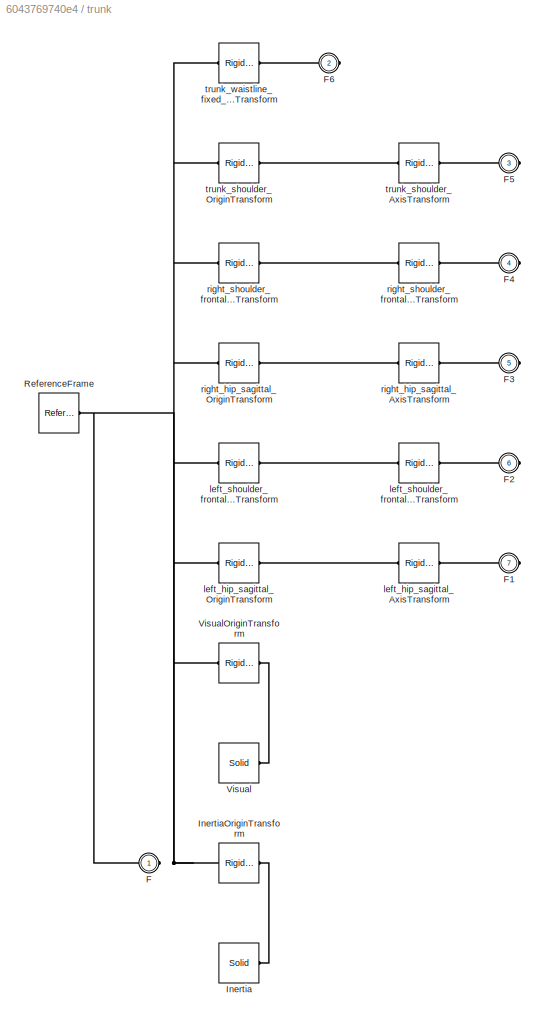
BLOCK [SubSystem] trunk
  Ports = [0, 0, 0, 0, 0, 1, 6]
  RequestExecContextInheritance = off
  Variant = off
BLOCK [PMIOPort] trunk/F
  Port = 1
  Side = Left
BLOCK [PMIOPort] trunk/F1
  Port = 7
  Side = Right
BLOCK [PMIOPort] trunk/F2
  Port = 6
  Side = Right
BLOCK [PMIOPort] trunk/F3
  Port = 5
  Side = Right
BLOCK [PMIOPort] trunk/F4
  Port = 4
  Side = Right
BLOCK [PMIOPort] trunk/F5
  Port = 3
  Side = Right
BLOCK [PMIOPort] trunk/F6
  Port = 2
  Side = Right
BLOCK [Reference] trunk/Inertia  REF=sm_lib/Body Elements/Solid
  Ports = [0, 0, 0, 0, 0, 0, 1]
  SourceBlock = sm_lib/Body Elements/Solid
  SourceProductBaseCode = MS
  SourceProductName = Simscape Multibody
  SourceType = Solid
BLOCK [Reference] trunk/InertiaOriginTransform  REF=sm_lib/Frames and
Transforms/Rigid
Transform
  Ports = [0, 0, 0, 0, 0, 1, 1]
  SourceBlock = sm_lib/Frames and\nTransforms/Rigid\nTransform
  SourceProductBaseCode = MS
  SourceProductName = Simscape Multibody
  SourceType = Rigid\nTransform
BLOCK [Reference] trunk/ReferenceFrame  REF=sm_lib/Frames and
Transforms/Reference
Frame
  Ports = [0, 0, 0, 0, 0, 0, 1]
  SourceBlock = sm_lib/Frames and\nTransforms/Reference\nFrame
  SourceProductBaseCode = MS
  SourceProductName = Simscape Multibody
  SourceType = Reference\nFrame
BLOCK [Reference] trunk/Visual  REF=sm_lib/Body Elements/Solid
  Ports = [0, 0, 0, 0, 0, 0, 1]
  SourceBlock = sm_lib/Body Elements/Solid
  SourceProductBaseCode = MS
  SourceProductName = Simscape Multibody
  SourceType = Solid
BLOCK [Reference] trunk/VisualOriginTransform  REF=sm_lib/Frames and
Transforms/Rigid
Transform
  Ports = [0, 0, 0, 0, 0, 1, 1]
  SourceBlock = sm_lib/Frames and\nTransforms/Rigid\nTransform
  SourceProductBaseCode = MS
  SourceProductName = Simscape Multibody
  SourceType = Rigid\nTransform
BLOCK [Reference] trunk/left_hip_sagittal_AxisTransform  REF=sm_lib/Frames and
Transforms/Rigid
Transform
  Ports = [0, 0, 0, 0, 0, 1, 1]
  SourceBlock = sm_lib/Frames and\nTransforms/Rigid\nTransform
  SourceProductBaseCode = MS
  SourceProductName = Simscape Multibody
  SourceType = Rigid\nTransform
BLOCK [Reference] trunk/left_hip_sagittal_OriginTransform  REF=sm_lib/Frames and
Transforms/Rigid
Transform
  Ports = [0, 0, 0, 0, 0, 1, 1]
  SourceBlock = sm_lib/Frames and\nTransforms/Rigid\nTransform
  SourceProductBaseCode = MS
  SourceProductName = Simscape Multibody
  SourceType = Rigid\nTransform
BLOCK [Reference] trunk/left_shoulder_frontal_AxisTransform  REF=sm_lib/Frames and
Transforms/Rigid
Transform
  Ports = [0, 0, 0, 0, 0, 1, 1]
  SourceBlock = sm_lib/Frames and\nTransforms/Rigid\nTransform
  SourceProductBaseCode = MS
  SourceProductName = Simscape Multibody
  SourceType = Rigid\nTransform
BLOCK [Reference] trunk/left_shoulder_frontal_OriginTransform  REF=sm_lib/Frames and
Transforms/Rigid
Transform
  Ports = [0, 0, 0, 0, 0, 1, 1]
  SourceBlock = sm_lib/Frames and\nTransforms/Rigid\nTransform
  SourceProductBaseCode = MS
  SourceProductName = Simscape Multibody
  SourceType = Rigid\nTransform
BLOCK [Reference] trunk/right_hip_sagittal_AxisTransform  REF=sm_lib/Frames and
Transforms/Rigid
Transform
  Ports = [0, 0, 0, 0, 0, 1, 1]
  SourceBlock = sm_lib/Frames and\nTransforms/Rigid\nTransform
  SourceProductBaseCode = MS
  SourceProductName = Simscape Multibody
  SourceType = Rigid\nTransform
BLOCK [Reference] trunk/right_hip_sagittal_OriginTransform  REF=sm_lib/Frames and
Transforms/Rigid
Transform
  Ports = [0, 0, 0, 0, 0, 1, 1]
  SourceBlock = sm_lib/Frames and\nTransforms/Rigid\nTransform
  SourceProductBaseCode = MS
  SourceProductName = Simscape Multibody
  SourceType = Rigid\nTransform
BLOCK [Reference] trunk/right_shoulder_frontal_AxisTransform  REF=sm_lib/Frames and
Transforms/Rigid
Transform
  Ports = [0, 0, 0, 0, 0, 1, 1]
  SourceBlock = sm_lib/Frames and\nTransforms/Rigid\nTransform
  SourceProductBaseCode = MS
  SourceProductName = Simscape Multibody
  SourceType = Rigid\nTransform
BLOCK [Reference] trunk/right_shoulder_frontal_OriginTransform  REF=sm_lib/Frames and
Transforms/Rigid
Transform
  Ports = [0, 0, 0, 0, 0, 1, 1]
  SourceBlock = sm_lib/Frames and\nTransforms/Rigid\nTransform
  SourceProductBaseCode = MS
  SourceProductName = Simscape Multibody
  SourceType = Rigid\nTransform
BLOCK [Reference] trunk/trunk_shoulder_AxisTransform  REF=sm_lib/Frames and
Transforms/Rigid
Transform
  Ports = [0, 0, 0, 0, 0, 1, 1]
  SourceBlock = sm_lib/Frames and\nTransforms/Rigid\nTransform
  SourceProductBaseCode = MS
  SourceProductName = Simscape Multibody
  SourceType = Rigid\nTransform
BLOCK [Reference] trunk/trunk_shoulder_OriginTransform  REF=sm_lib/Frames and
Transforms/Rigid
Transform
  Ports = [0, 0, 0, 0, 0, 1, 1]
  SourceBlock = sm_lib/Frames and\nTransforms/Rigid\nTransform
  SourceProductBaseCode = MS
  SourceProductName = Simscape Multibody
  SourceType = Rigid\nTransform
BLOCK [Reference] trunk/trunk_waistline_fixed_OriginTransform  REF=sm_lib/Frames and
Transforms/Rigid
Transform
  Ports = [0, 0, 0, 0, 0, 1, 1]
  SourceBlock = sm_lib/Frames and\nTransforms/Rigid\nTransform
  SourceProductBaseCode = MS
  SourceProductName = Simscape Multibody
  SourceType = Rigid\nTransform
BLOCK [Reference] trunk_shoulder  REF=sm_lib/Joints/Revolute Joint
  Ports = [0, 0, 0, 0, 0, 2, 1]
  SourceBlock = sm_lib/Joints/Revolute Joint
  SourceProductBaseCode = MS
  SourceProductName = Simscape Multibody
  SourceType = Revolute Joint
BLOCK [Reference] trunk_waistline_fixed  REF=sm_lib/Joints/Weld Joint
  Ports = [0, 0, 0, 0, 0, 1, 1]
  SourceBlock = sm_lib/Joints/Weld Joint
  SourceProductBaseCode = MS
  SourceProductName = Simscape Multibody
  SourceType = Weld Joint
BLOCK [SubSystem] waistline
  Ports = [0, 0, 0, 0, 0, 1]
  RequestExecContextInheritance = off
  Variant = off
BLOCK [PMIOPort] waistline/F
  Port = 1
  Side = Left
BLOCK [Reference] waistline/Inertia  REF=sm_lib/Body Elements/Solid
  Ports = [0, 0, 0, 0, 0, 0, 1]
  SourceBlock = sm_lib/Body Elements/Solid
  SourceProductBaseCode = MS
  SourceProductName = Simscape Multibody
  SourceType = Solid
BLOCK [Reference] waistline/InertiaOriginTransform  REF=sm_lib/Frames and
Transforms/Rigid
Transform
  Ports = [0, 0, 0, 0, 0, 1, 1]
  SourceBlock = sm_lib/Frames and\nTransforms/Rigid\nTransform
  SourceProductBaseCode = MS
  SourceProductName = Simscape Multibody
  SourceType = Rigid\nTransform
BLOCK [Reference] waistline/ReferenceFrame  REF=sm_lib/Frames and
Transforms/Reference
Frame
  Ports = [0, 0, 0, 0, 0, 0, 1]
  SourceBlock = sm_lib/Frames and\nTransforms/Reference\nFrame
  SourceProductBaseCode = MS
  SourceProductName = Simscape Multibody
  SourceType = Reference\nFrame
BLOCK [Reference] waistline/Visual  REF=sm_lib/Body Elements/Solid
  Ports = [0, 0, 0, 0, 0, 0, 1]
  SourceBlock = sm_lib/Body Elements/Solid
  SourceProductBaseCode = MS
  SourceProductName = Simscape Multibody
  SourceType = Solid
BLOCK [Reference] waistline/VisualOriginTransform  REF=sm_lib/Frames and
Transforms/Rigid
Transform
  Ports = [0, 0, 0, 0, 0, 1, 1]
  SourceBlock = sm_lib/Frames and\nTransforms/Rigid\nTransform
  SourceProductBaseCode = MS
  SourceProductName = Simscape Multibody
  SourceType = Rigid\nTransform
ANNOTATION (root): 1. Explore simulation results using sscexplore 2. Learn more about this example 3. Learn more about multibody import
ANNOTATION (root): Humanoid Robot - Imported from URDF file
LINE left_ankle_actuation/motion_signal:1 -> left_ankle_actuation/Simulink-PS Converter:1
LINE left_hip_actuation/motion_signal:1 -> left_hip_actuation/Simulink-PS Converter:1
LINE left_hip_sag_actuation/motion_signal1:1 -> left_hip_sag_actuation/Simulink-PS Converter:1
LINE left_knee_actuation/motion_signal:1 -> left_knee_actuation/Simulink-PS Converter:1
LINE left_shoulder_actuation/motion_signal:1 -> left_shoulder_actuation/Simulink-PS Converter:1
LINE neck_actuation/motion_signal:1 -> neck_actuation/Simulink-PS Converter:1
LINE right_ankle_actuation/motion_signal:1 -> right_ankle_actuation/Simulink-PS Converter:1
LINE right_hip_actuation/motion_signal:1 -> right_hip_actuation/Simulink-PS Converter:1
LINE right_hip_sag_actuation/motion_signal:1 -> right_hip_sag_actuation/Simulink-PS Converter:1
LINE right_knee_actuation/motion_signal:1 -> right_knee_actuation/Simulink-PS Converter:1
LINE right_shoulder_actuation/motion_signal:1 -> right_shoulder_actuation/Simulink-PS Converter:1
LINE shoulder_actuation/motion_signal:1 -> shoulder_actuation/Simulink-PS Converter:1
PNET net1: MechanismConfiguration:RConn1 -- Solver Configuration:RConn1 -- World:RConn1 -- trunk:LConn1
PNET net2: cover/F:RConn1 -- cover/InertiaOriginTransform:LConn1 -- cover/ReferenceFrame:RConn1 -- cover/VisualOriginTransform:LConn1
PLINE cover/Inertia:RConn1 -- cover/InertiaOriginTransform:RConn1
PLINE cover/Visual:RConn1 -- cover/VisualOriginTransform:RConn1
PLINE cover:LConn1 -- head_cover_fixed:RConn1
PLINE head/F1:RConn1 -- head/head_cover_fixed_OriginTransform:RConn1
PNET net3: head/F:RConn1 -- head/InertiaOriginTransform:LConn1 -- head/ReferenceFrame:RConn1 -- head/VisualOriginTransform:LConn1 -- head/head_cover_fixed_OriginTransform:LConn1
PLINE head/Inertia:RConn1 -- head/InertiaOriginTransform:RConn1
PLINE head/Visual:RConn1 -- head/VisualOriginTransform:RConn1
PLINE head:LConn1 -- neck_head:RConn1
PLINE head:RConn1 -- head_cover_fixed:LConn1
PLINE left_ankle:LConn1 -- left_lower_leg:RConn1
PLINE left_ankle:LConn2 -- left_ankle_actuation:RConn1
PLINE left_ankle:RConn1 -- left_foot:LConn1
PLINE left_ankle_actuation/Simulink-PS Converter:RConn1 -- left_ankle_actuation/p:RConn1
PLINE left_elbow:LConn1 -- left_upper_arm:RConn1
PLINE left_elbow:RConn1 -- left_lower_arm:LConn1
PLINE left_foot/F:RConn1 -- left_foot/left_ankle_AxisInvTransform:RConn1
PLINE left_foot/Inertia:RConn1 -- left_foot/InertiaOriginTransform:RConn1
PNET net4: left_foot/InertiaOriginTransform:LConn1 -- left_foot/ReferenceFrame:RConn1 -- left_foot/VisualOriginTransform:LConn1 -- left_foot/left_ankle_AxisInvTransform:LConn1
PLINE left_foot/Visual:RConn1 -- left_foot/VisualOriginTransform:RConn1
PLINE left_hand/F:RConn1 -- left_hand/left_wrist_AxisInvTransform:RConn1
PLINE left_hand/Inertia:RConn1 -- left_hand/InertiaOriginTransform:RConn1
PNET net5: left_hand/InertiaOriginTransform:LConn1 -- left_hand/ReferenceFrame:RConn1 -- left_hand/VisualOriginTransform:LConn1 -- left_hand/left_wrist_AxisInvTransform:LConn1
PLINE left_hand/Visual:RConn1 -- left_hand/VisualOriginTransform:RConn1
PLINE left_hand:LConn1 -- left_wrist:RConn1
PLINE left_hip/F1:RConn1 -- left_hip/left_hip_frontal_AxisTransform:RConn1
PLINE left_hip/F:RConn1 -- left_hip/left_hip_sagittal_AxisInvTransform:RConn1
PLINE left_hip/Inertia:RConn1 -- left_hip/InertiaOriginTransform:RConn1
PNET net6: left_hip/InertiaOriginTransform:LConn1 -- left_hip/ReferenceFrame:RConn1 -- left_hip/VisualOriginTransform:LConn1 -- left_hip/left_hip_frontal_OriginTransform:LConn1 -- left_hip/left_hip_sagittal_AxisInvTransform:LConn1
PLINE left_hip/Visual:RConn1 -- left_hip/VisualOriginTransform:RConn1
PLINE left_hip/left_hip_frontal_AxisTransform:LConn1 -- left_hip/left_hip_frontal_OriginTransform:RConn1
PLINE left_hip:LConn1 -- left_hip_sagittal:RConn1
PLINE left_hip:RConn1 -- left_hip_frontal:LConn1
PLINE left_hip_actuation/Simulink-PS Converter:RConn1 -- left_hip_actuation/p:RConn1
PLINE left_hip_actuation:RConn1 -- left_hip_frontal:LConn2
PLINE left_hip_frontal:RConn1 -- left_upper_leg:LConn1
PLINE left_hip_sag_actuation/Simulink-PS Converter:RConn1 -- left_hip_sag_actuation/p:RConn1
PLINE left_hip_sag_actuation:RConn1 -- left_hip_sagittal:LConn2
PLINE left_hip_sagittal:LConn1 -- trunk:RConn6
PLINE left_knee:LConn1 -- left_upper_leg:RConn1
PLINE left_knee:LConn2 -- left_knee_actuation:RConn1
PLINE left_knee:RConn1 -- left_lower_leg:LConn1
PLINE left_knee_actuation/Simulink-PS Converter:RConn1 -- left_knee_actuation/p:RConn1
PLINE left_lower_arm/F1:RConn1 -- left_lower_arm/left_wrist_AxisTransform:RConn1
PLINE left_lower_arm/F:RConn1 -- left_lower_arm/left_elbow_AxisInvTransform:RConn1
PLINE left_lower_arm/Inertia:RConn1 -- left_lower_arm/InertiaOriginTransform:RConn1
PNET net7: left_lower_arm/InertiaOriginTransform:LConn1 -- left_lower_arm/ReferenceFrame:RConn1 -- left_lower_arm/VisualOriginTransform:LConn1 -- left_lower_arm/left_elbow_AxisInvTransform:LConn1 -- left_lower_arm/left_wrist_OriginTransform:LConn1
PLINE left_lower_arm/Visual:RConn1 -- left_lower_arm/VisualOriginTransform:RConn1
PLINE left_lower_arm/left_wrist_AxisTransform:LConn1 -- left_lower_arm/left_wrist_OriginTransform:RConn1
PLINE left_lower_arm:RConn1 -- left_wrist:LConn1
PLINE left_lower_leg/F1:RConn1 -- left_lower_leg/left_ankle_AxisTransform:RConn1
PLINE left_lower_leg/F:RConn1 -- left_lower_leg/left_knee_AxisInvTransform:RConn1
PLINE left_lower_leg/Inertia:RConn1 -- left_lower_leg/InertiaOriginTransform:RConn1
PNET net8: left_lower_leg/InertiaOriginTransform:LConn1 -- left_lower_leg/ReferenceFrame:RConn1 -- left_lower_leg/VisualOriginTransform:LConn1 -- left_lower_leg/left_ankle_OriginTransform:LConn1 -- left_lower_leg/left_knee_AxisInvTransform:LConn1
PLINE left_lower_leg/Visual:RConn1 -- left_lower_leg/VisualOriginTransform:RConn1
PLINE left_lower_leg/left_ankle_AxisTransform:LConn1 -- left_lower_leg/left_ankle_OriginTransform:RConn1
PLINE left_shoulder/F1:RConn1 -- left_shoulder/left_shoulder_sagittal_AxisTransform:RConn1
PLINE left_shoulder/F:RConn1 -- left_shoulder/left_shoulder_frontal_AxisInvTransform:RConn1
PLINE left_shoulder/Inertia:RConn1 -- left_shoulder/InertiaOriginTransform:RConn1
PNET net9: left_shoulder/InertiaOriginTransform:LConn1 -- left_shoulder/ReferenceFrame:RConn1 -- left_shoulder/VisualOriginTransform:LConn1 -- left_shoulder/left_shoulder_frontal_AxisInvTransform:LConn1 -- left_shoulder/left_shoulder_sagittal_OriginTransform:LConn1
PLINE left_shoulder/Visual:RConn1 -- left_shoulder/VisualOriginTransform:RConn1
PLINE left_shoulder/left_shoulder_sagittal_AxisTransform:LConn1 -- left_shoulder/left_shoulder_sagittal_OriginTransform:RConn1
PLINE left_shoulder:LConn1 -- left_shoulder_frontal:RConn1
PLINE left_shoulder:RConn1 -- left_shoulder_sagittal:LConn1
PLINE left_shoulder_actuation/Simulink-PS Converter:RConn1 -- left_shoulder_actuation/p:RConn1
PLINE left_shoulder_actuation:RConn1 -- left_shoulder_frontal:LConn2
PLINE left_shoulder_frontal:LConn1 -- trunk:RConn5
PLINE left_shoulder_sagittal:RConn1 -- left_upper_arm:LConn1
PLINE left_upper_arm/F1:RConn1 -- left_upper_arm/left_elbow_AxisTransform:RConn1
PLINE left_upper_arm/F:RConn1 -- left_upper_arm/left_shoulder_sagittal_AxisInvTransform:RConn1
PLINE left_upper_arm/Inertia:RConn1 -- left_upper_arm/InertiaOriginTransform:RConn1
PNET net10: left_upper_arm/InertiaOriginTransform:LConn1 -- left_upper_arm/ReferenceFrame:RConn1 -- left_upper_arm/VisualOriginTransform:LConn1 -- left_upper_arm/left_elbow_OriginTransform:LConn1 -- left_upper_arm/left_shoulder_sagittal_AxisInvTransform:LConn1
PLINE left_upper_arm/Visual:RConn1 -- left_upper_arm/VisualOriginTransform:RConn1
PLINE left_upper_arm/left_elbow_AxisTransform:LConn1 -- left_upper_arm/left_elbow_OriginTransform:RConn1
PLINE left_upper_leg/F1:RConn1 -- left_upper_leg/left_knee_AxisTransform:RConn1
PLINE left_upper_leg/F:RConn1 -- left_upper_leg/left_hip_frontal_AxisInvTransform:RConn1
PLINE left_upper_leg/Inertia:RConn1 -- left_upper_leg/InertiaOriginTransform:RConn1
PNET net11: left_upper_leg/InertiaOriginTransform:LConn1 -- left_upper_leg/ReferenceFrame:RConn1 -- left_upper_leg/VisualOriginTransform:LConn1 -- left_upper_leg/left_hip_frontal_AxisInvTransform:LConn1 -- left_upper_leg/left_knee_OriginTransform:LConn1
PLINE left_upper_leg/Visual:RConn1 -- left_upper_leg/VisualOriginTransform:RConn1
PLINE left_upper_leg/left_knee_AxisTransform:LConn1 -- left_upper_leg/left_knee_OriginTransform:RConn1
PLINE neck/F1:RConn1 -- neck/neck_head_OriginTransform:RConn1
PLINE neck/F:RConn1 -- neck/shoulder_neck_AxisInvTransform:RConn1
PLINE neck/Inertia:RConn1 -- neck/InertiaOriginTransform:RConn1
PNET net12: neck/InertiaOriginTransform:LConn1 -- neck/ReferenceFrame:RConn1 -- neck/VisualOriginTransform:LConn1 -- neck/neck_head_OriginTransform:LConn1 -- neck/shoulder_neck_AxisInvTransform:LConn1
PLINE neck/Visual:RConn1 -- neck/VisualOriginTransform:RConn1
PLINE neck:LConn1 -- shoulder_neck:RConn1
PLINE neck:RConn1 -- neck_head:LConn1
PLINE neck_actuation/Simulink-PS Converter:RConn1 -- neck_actuation/p:RConn1
PLINE neck_actuation:RConn1 -- shoulder_neck:LConn2
PLINE right_ankle:LConn1 -- right_lower_leg:RConn1
PLINE right_ankle:LConn2 -- right_ankle_actuation:RConn1
PLINE right_ankle:RConn1 -- right_foot:LConn1
PLINE right_ankle_actuation/Simulink-PS Converter:RConn1 -- right_ankle_actuation/p:RConn1
PLINE right_elbow:LConn1 -- right_upper_arm:RConn1
PLINE right_elbow:RConn1 -- right_lower_arm:LConn1
PLINE right_foot/F:RConn1 -- right_foot/right_ankle_AxisInvTransform:RConn1
PLINE right_foot/Inertia:RConn1 -- right_foot/InertiaOriginTransform:RConn1
PNET net13: right_foot/InertiaOriginTransform:LConn1 -- right_foot/ReferenceFrame:RConn1 -- right_foot/VisualOriginTransform:LConn1 -- right_foot/right_ankle_AxisInvTransform:LConn1
PLINE right_foot/Visual:RConn1 -- right_foot/VisualOriginTransform:RConn1
PLINE right_hand/F:RConn1 -- right_hand/right_wrist_AxisInvTransform:RConn1
PLINE right_hand/Inertia:RConn1 -- right_hand/InertiaOriginTransform:RConn1
PNET net14: right_hand/InertiaOriginTransform:LConn1 -- right_hand/ReferenceFrame:RConn1 -- right_hand/VisualOriginTransform:LConn1 -- right_hand/right_wrist_AxisInvTransform:LConn1
PLINE right_hand/Visual:RConn1 -- right_hand/VisualOriginTransform:RConn1
PLINE right_hand:LConn1 -- right_wrist:RConn1
PLINE right_hip/F1:RConn1 -- right_hip/right_hip_frontal_AxisTransform:RConn1
PLINE right_hip/F:RConn1 -- right_hip/right_hip_sagittal_AxisInvTransform:RConn1
PLINE right_hip/Inertia:RConn1 -- right_hip/InertiaOriginTransform:RConn1
PNET net15: right_hip/InertiaOriginTransform:LConn1 -- right_hip/ReferenceFrame:RConn1 -- right_hip/VisualOriginTransform:LConn1 -- right_hip/right_hip_frontal_OriginTransform:LConn1 -- right_hip/right_hip_sagittal_AxisInvTransform:LConn1
PLINE right_hip/Visual:RConn1 -- right_hip/VisualOriginTransform:RConn1
PLINE right_hip/right_hip_frontal_AxisTransform:LConn1 -- right_hip/right_hip_frontal_OriginTransform:RConn1
PLINE right_hip:LConn1 -- right_hip_sagittal:RConn1
PLINE right_hip:RConn1 -- right_hip_frontal:LConn1
PLINE right_hip_actuation/Simulink-PS Converter:RConn1 -- right_hip_actuation/p:RConn1
PLINE right_hip_actuation:RConn1 -- right_hip_frontal:LConn2
PLINE right_hip_frontal:RConn1 -- right_upper_leg:LConn1
PLINE right_hip_sag_actuation/Simulink-PS Converter:RConn1 -- right_hip_sag_actuation/p:RConn1
PLINE right_hip_sag_actuation:RConn1 -- right_hip_sagittal:LConn2
PLINE right_hip_sagittal:LConn1 -- trunk:RConn4
PLINE right_knee:LConn1 -- right_upper_leg:RConn1
PLINE right_knee:LConn2 -- right_knee_actuation:RConn1
PLINE right_knee:RConn1 -- right_lower_leg:LConn1
PLINE right_knee_actuation/Simulink-PS Converter:RConn1 -- right_knee_actuation/p:RConn1
PLINE right_lower_arm/F1:RConn1 -- right_lower_arm/right_wrist_AxisTransform:RConn1
PLINE right_lower_arm/F:RConn1 -- right_lower_arm/right_elbow_AxisInvTransform:RConn1
PLINE right_lower_arm/Inertia:RConn1 -- right_lower_arm/InertiaOriginTransform:RConn1
PNET net16: right_lower_arm/InertiaOriginTransform:LConn1 -- right_lower_arm/ReferenceFrame:RConn1 -- right_lower_arm/VisualOriginTransform:LConn1 -- right_lower_arm/right_elbow_AxisInvTransform:LConn1 -- right_lower_arm/right_wrist_OriginTransform:LConn1
PLINE right_lower_arm/Visual:RConn1 -- right_lower_arm/VisualOriginTransform:RConn1
PLINE right_lower_arm/right_wrist_AxisTransform:LConn1 -- right_lower_arm/right_wrist_OriginTransform:RConn1
PLINE right_lower_arm:RConn1 -- right_wrist:LConn1
PLINE right_lower_leg/F1:RConn1 -- right_lower_leg/right_ankle_AxisTransform:RConn1
PLINE right_lower_leg/F:RConn1 -- right_lower_leg/right_knee_AxisInvTransform:RConn1
PLINE right_lower_leg/Inertia:RConn1 -- right_lower_leg/InertiaOriginTransform:RConn1
PNET net17: right_lower_leg/InertiaOriginTransform:LConn1 -- right_lower_leg/ReferenceFrame:RConn1 -- right_lower_leg/VisualOriginTransform:LConn1 -- right_lower_leg/right_ankle_OriginTransform:LConn1 -- right_lower_leg/right_knee_AxisInvTransform:LConn1
PLINE right_lower_leg/Visual:RConn1 -- right_lower_leg/VisualOriginTransform:RConn1
PLINE right_lower_leg/right_ankle_AxisTransform:LConn1 -- right_lower_leg/right_ankle_OriginTransform:RConn1
PLINE right_shoulder/F1:RConn1 -- right_shoulder/right_shoulder_sagittal_AxisTransform:RConn1
PLINE right_shoulder/F:RConn1 -- right_shoulder/right_shoulder_frontal_AxisInvTransform:RConn1
PLINE right_shoulder/Inertia:RConn1 -- right_shoulder/InertiaOriginTransform:RConn1
PNET net18: right_shoulder/InertiaOriginTransform:LConn1 -- right_shoulder/ReferenceFrame:RConn1 -- right_shoulder/VisualOriginTransform:LConn1 -- right_shoulder/right_shoulder_frontal_AxisInvTransform:LConn1 -- right_shoulder/right_shoulder_sagittal_OriginTransform:LConn1
PLINE right_shoulder/Visual:RConn1 -- right_shoulder/VisualOriginTransform:RConn1
PLINE right_shoulder/right_shoulder_sagittal_AxisTransform:LConn1 -- right_shoulder/right_shoulder_sagittal_OriginTransform:RConn1
PLINE right_shoulder:LConn1 -- right_shoulder_frontal:RConn1
PLINE right_shoulder:RConn1 -- right_shoulder_sagittal:LConn1
PLINE right_shoulder_actuation/Simulink-PS Converter:RConn1 -- right_shoulder_actuation/p:RConn1
PLINE right_shoulder_actuation:RConn1 -- right_shoulder_frontal:LConn2
PLINE right_shoulder_frontal:LConn1 -- trunk:RConn3
PLINE right_shoulder_sagittal:RConn1 -- right_upper_arm:LConn1
PLINE right_upper_arm/F1:RConn1 -- right_upper_arm/right_elbow_AxisTransform:RConn1
PLINE right_upper_arm/F:RConn1 -- right_upper_arm/right_shoulder_sagittal_AxisInvTransform:RConn1
PLINE right_upper_arm/Inertia:RConn1 -- right_upper_arm/InertiaOriginTransform:RConn1
PNET net19: right_upper_arm/InertiaOriginTransform:LConn1 -- right_upper_arm/ReferenceFrame:RConn1 -- right_upper_arm/VisualOriginTransform:LConn1 -- right_upper_arm/right_elbow_OriginTransform:LConn1 -- right_upper_arm/right_shoulder_sagittal_AxisInvTransform:LConn1
PLINE right_upper_arm/Visual:RConn1 -- right_upper_arm/VisualOriginTransform:RConn1
PLINE right_upper_arm/right_elbow_AxisTransform:LConn1 -- right_upper_arm/right_elbow_OriginTransform:RConn1
PLINE right_upper_leg/F1:RConn1 -- right_upper_leg/right_knee_AxisTransform:RConn1
PLINE right_upper_leg/F:RConn1 -- right_upper_leg/right_hip_frontal_AxisInvTransform:RConn1
PLINE right_upper_leg/Inertia:RConn1 -- right_upper_leg/InertiaOriginTransform:RConn1
PNET net20: right_upper_leg/InertiaOriginTransform:LConn1 -- right_upper_leg/ReferenceFrame:RConn1 -- right_upper_leg/VisualOriginTransform:LConn1 -- right_upper_leg/right_hip_frontal_AxisInvTransform:LConn1 -- right_upper_leg/right_knee_OriginTransform:LConn1
PLINE right_upper_leg/Visual:RConn1 -- right_upper_leg/VisualOriginTransform:RConn1
PLINE right_upper_leg/right_knee_AxisTransform:LConn1 -- right_upper_leg/right_knee_OriginTransform:RConn1
PLINE shoulder_actuation/Simulink-PS Converter:RConn1 -- shoulder_actuation/p:RConn1
PLINE shoulder_actuation:RConn1 -- trunk_shoulder:LConn2
PLINE shoulder_line/F1:RConn1 -- shoulder_line/shoulder_neck_AxisTransform:RConn1
PLINE shoulder_line/F:RConn1 -- shoulder_line/trunk_shoulder_AxisInvTransform:RConn1
PLINE shoulder_line/Inertia:RConn1 -- shoulder_line/InertiaOriginTransform:RConn1
PNET net21: shoulder_line/InertiaOriginTransform:LConn1 -- shoulder_line/ReferenceFrame:RConn1 -- shoulder_line/VisualOriginTransform:LConn1 -- shoulder_line/shoulder_neck_OriginTransform:LConn1 -- shoulder_line/trunk_shoulder_AxisInvTransform:LConn1
PLINE shoulder_line/Visual:RConn1 -- shoulder_line/VisualOriginTransform:RConn1
PLINE shoulder_line/shoulder_neck_AxisTransform:LConn1 -- shoulder_line/shoulder_neck_OriginTransform:RConn1
PLINE shoulder_line:LConn1 -- trunk_shoulder:RConn1
PLINE shoulder_line:RConn1 -- shoulder_neck:LConn1
PLINE trunk/F1:RConn1 -- trunk/left_hip_sagittal_AxisTransform:RConn1
PLINE trunk/F2:RConn1 -- trunk/left_shoulder_frontal_AxisTransform:RConn1
PLINE trunk/F3:RConn1 -- trunk/right_hip_sagittal_AxisTransform:RConn1
PLINE trunk/F4:RConn1 -- trunk/right_shoulder_frontal_AxisTransform:RConn1
PLINE trunk/F5:RConn1 -- trunk/trunk_shoulder_AxisTransform:RConn1
PLINE trunk/F6:RConn1 -- trunk/trunk_waistline_fixed_OriginTransform:RConn1
PNET net22: trunk/F:RConn1 -- trunk/InertiaOriginTransform:LConn1 -- trunk/ReferenceFrame:RConn1 -- trunk/VisualOriginTransform:LConn1 -- trunk/left_hip_sagittal_OriginTransform:LConn1 -- trunk/left_shoulder_frontal_OriginTransform:LConn1 -- trunk/right_hip_sagittal_OriginTransform:LConn1 -- trunk/right_shoulder_frontal_OriginTransform:LConn1 -- trunk/trunk_shoulder_OriginTransform:LConn1 -- trunk/trunk_waistline_fixed_OriginTransform:LConn1
PLINE trunk/Inertia:RConn1 -- trunk/InertiaOriginTransform:RConn1
PLINE trunk/Visual:RConn1 -- trunk/VisualOriginTransform:RConn1
PLINE trunk/left_hip_sagittal_AxisTransform:LConn1 -- trunk/left_hip_sagittal_OriginTransform:RConn1
PLINE trunk/left_shoulder_frontal_AxisTransform:LConn1 -- trunk/left_shoulder_frontal_OriginTransform:RConn1
PLINE trunk/right_hip_sagittal_AxisTransform:LConn1 -- trunk/right_hip_sagittal_OriginTransform:RConn1
PLINE trunk/right_shoulder_frontal_AxisTransform:LConn1 -- trunk/right_shoulder_frontal_OriginTransform:RConn1
PLINE trunk/trunk_shoulder_AxisTransform:LConn1 -- trunk/trunk_shoulder_OriginTransform:RConn1
PLINE trunk:RConn1 -- trunk_waistline_fixed:LConn1
PLINE trunk:RConn2 -- trunk_shoulder:LConn1
PLINE trunk_waistline_fixed:RConn1 -- waistline:LConn1
PNET net23: waistline/F:RConn1 -- waistline/InertiaOriginTransform:LConn1 -- waistline/ReferenceFrame:RConn1 -- waistline/VisualOriginTransform:LConn1
PLINE waistline/Inertia:RConn1 -- waistline/InertiaOriginTransform:RConn1
PLINE waistline/Visual:RConn1 -- waistline/VisualOriginTransform:RConn1
note: PNET lines group multi-terminal physical nets as a canonical sorted terminal list (undirected conserving connections); 2-terminal nets keep the pairwise PLINE form
